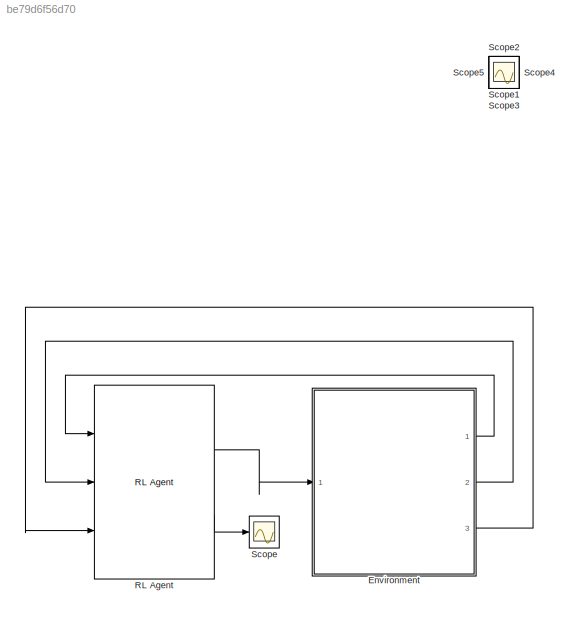
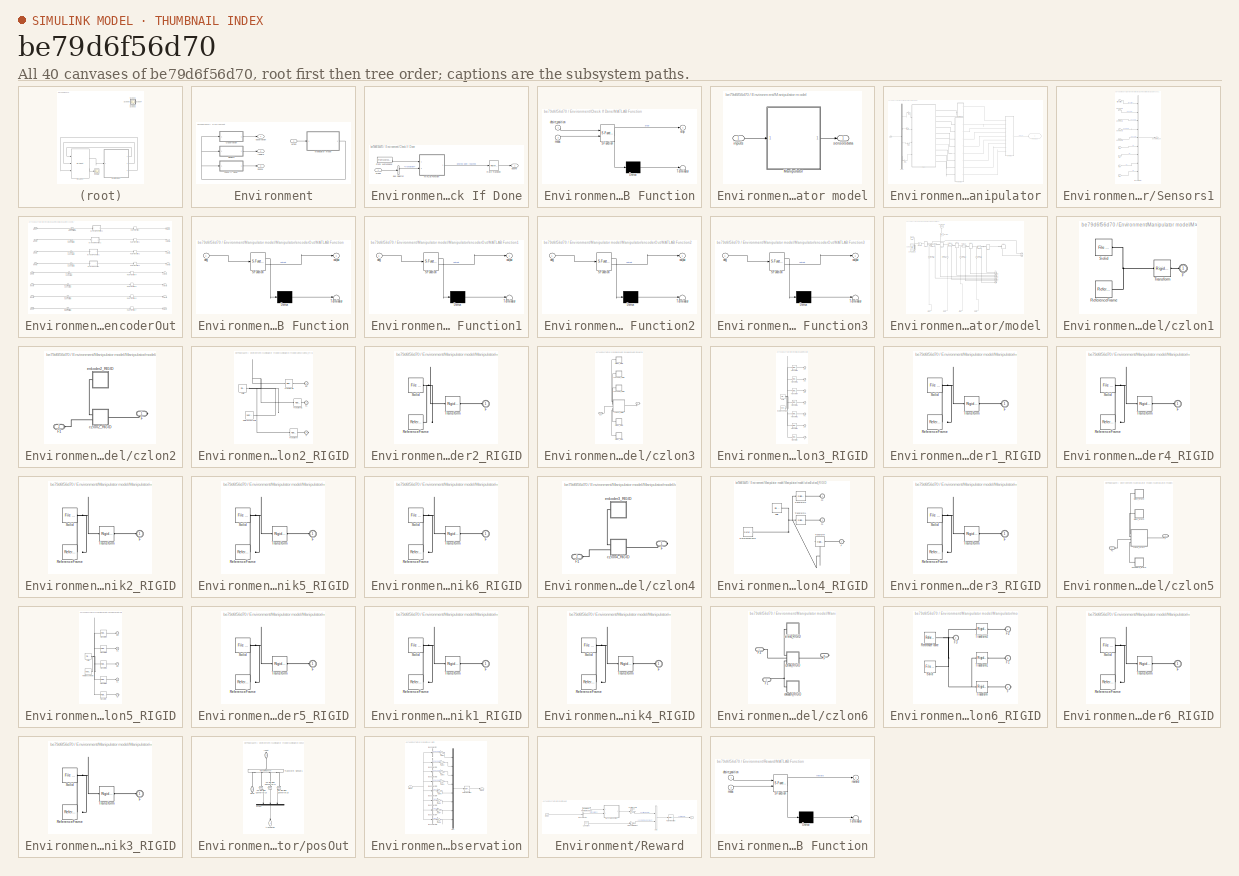
[diagram: thumbnail index - all 40 canvases of the model, root first then tree order]
MODEL slx_be79d6f56d70
KIND model
CONFIG AbsTol = 1e-4
CONFIG EnableMultiTasking = on
CONFIG FixedStep = auto
CONFIG MaxStep = auto
CONFIG MinStep = auto
CONFIG RelTol = 1e-3
CONFIG SampleTimeConstraint = Unconstrained
CONFIG SolverName = ode23t
CONFIG StartTime = 0.0
CONFIG StopTime = Tf
BLOCK [SubSystem] Environment
  Ports = [1, 3]
  RequestExecContextInheritance = off
BLOCK [SubSystem] Environment/Check If Done
  Ports = [1, 1]
  RequestExecContextInheritance = off
BLOCK [BusSelector] Environment/Check If Done/Bus Selector
  OutputSignals = translation
  Ports = [1, 1]
BLOCK [FromWorkspace] Environment/Check If Done/From Workspace
  VariableName = desire_position
BLOCK [SubSystem] Environment/Check If Done/MATLAB Function
  ErrorFcn = Stateflow.Translate.translate
  PermitHierarchicalResolution = ExplicitOnly
  Ports = [2, 1]
  RequestExecContextInheritance = off
  SFBlockType = MATLAB Function
  TreatAsAtomicUnit = on
BLOCK [Demux] Environment/Check If Done/MATLAB Function/ Demux 
  Outputs = 1
  Ports = [1, 1]
BLOCK [S-Function] Environment/Check If Done/MATLAB Function/ SFunction 
  EnableBusSupport = on
  FunctionName = sf_sfun
  PortCounts = [2 2]
  Ports = [2, 2]
  SFcnIsStateOwnerBlock = off
  SFunctionDeploymentMode = off
  Tag = Stateflow S-Function 7
BLOCK [Terminator] Environment/Check If Done/MATLAB Function/ Terminator 
BLOCK [Inport] Environment/Check If Done/MATLAB Function/desire_position
BLOCK [Inport] Environment/Check If Done/MATLAB Function/meas
  Port = 2
BLOCK [Outport] Environment/Check If Done/MATLAB Function/stop
BLOCK [RateTransition] Environment/Check If Done/Rate Transition
BLOCK [Outport] Environment/Check If Done/isdone
  VectorParamsAs1DForOutWhenUnconnected = off
BLOCK [Inport] Environment/Check If Done/meas
BLOCK [SubSystem] Environment/Manipulator model
  Ports = [1, 1]
  RequestExecContextInheritance = off
BLOCK [SubSystem] Environment/Manipulator model/Manipulator
  Ports = [1, 1]
  RequestExecContextInheritance = off
BLOCK [Demux] Environment/Manipulator model/Manipulator/Demux
  Ports = [1, 4]
BLOCK [Gain] Environment/Manipulator model/Manipulator/Gain
  Gain = max_t
BLOCK [Gain] Environment/Manipulator model/Manipulator/Gain1
  Gain = max_t
BLOCK [Gain] Environment/Manipulator model/Manipulator/Gain2
  Gain = max_t
BLOCK [Gain] Environment/Manipulator model/Manipulator/Gain3
  Gain = max_t
BLOCK [SubSystem] Environment/Manipulator model/Manipulator/Sensors1
  Ports = [9, 1]
  RequestExecContextInheritance = off
BLOCK [BusCreator] Environment/Manipulator model/Manipulator/Sensors1/Bus Creator
  DisplayOption = bar
  InheritFromInputs = on
  Inputs = 9
  Ports = [9, 1]
BLOCK [Inport] Environment/Manipulator model/Manipulator/Sensors1/enkoder1
  Port = 2
BLOCK [Inport] Environment/Manipulator model/Manipulator/Sensors1/enkoder2
  Port = 3
BLOCK [Inport] Environment/Manipulator model/Manipulator/Sensors1/enkoder3
  Port = 4
BLOCK [Inport] Environment/Manipulator model/Manipulator/Sensors1/enkoder4
  Port = 5
BLOCK [Outport] Environment/Manipulator model/Manipulator/Sensors1/sensors_out
  VectorParamsAs1DForOutWhenUnconnected = off
BLOCK [Inport] Environment/Manipulator model/Manipulator/Sensors1/translation
BLOCK [Inport] Environment/Manipulator model/Manipulator/Sensors1/w1
  Port = 6
BLOCK [Inport] Environment/Manipulator model/Manipulator/Sensors1/w2
  Port = 7
BLOCK [Inport] Environment/Manipulator model/Manipulator/Sensors1/w3
  NameLocation = right
  Port = 8
BLOCK [Inport] Environment/Manipulator model/Manipulator/Sensors1/w4
  Port = 9
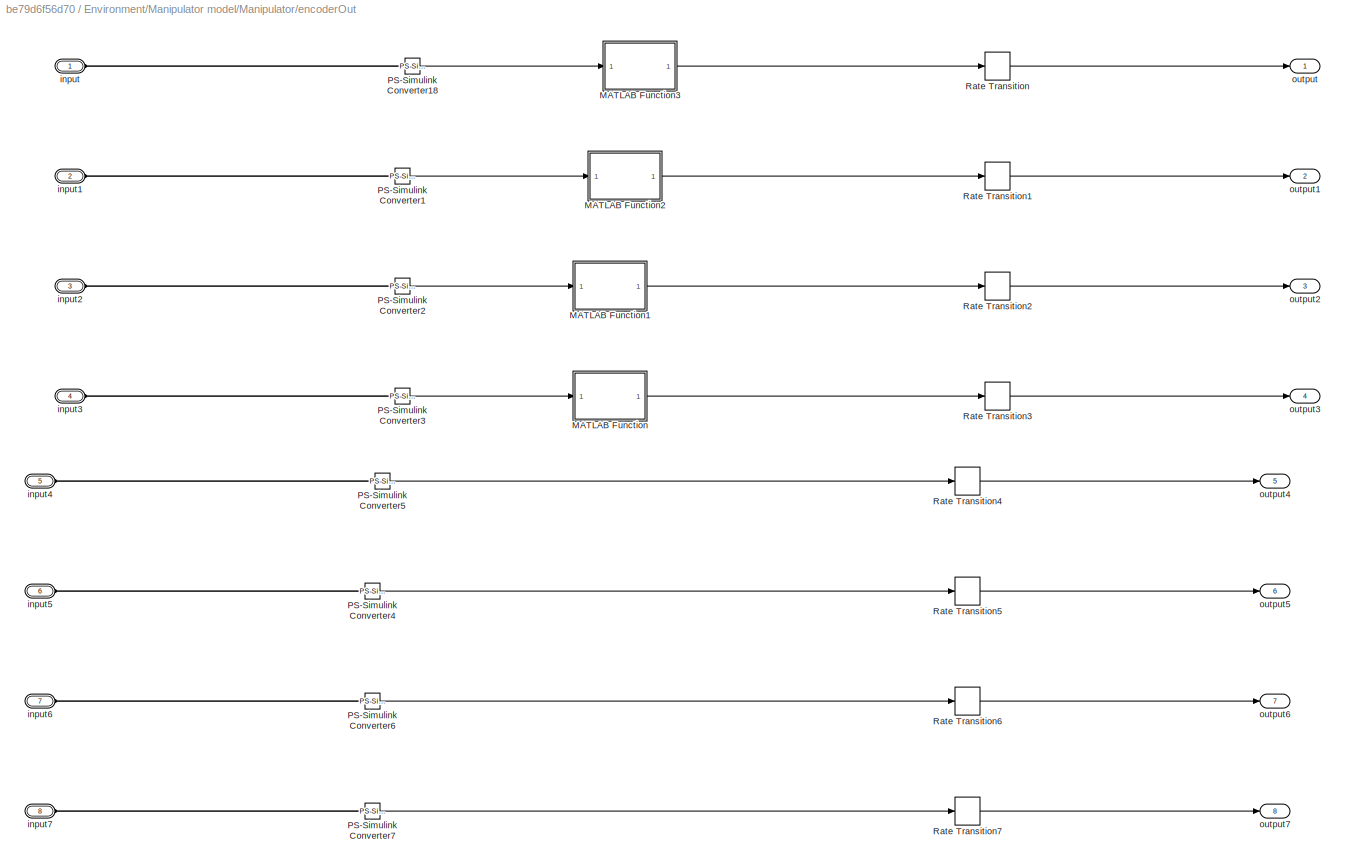
BLOCK [SubSystem] Environment/Manipulator model/Manipulator/encoderOut
  Ports = [0, 8, 0, 0, 0, 8]
  RequestExecContextInheritance = off
BLOCK [SubSystem] Environment/Manipulator model/Manipulator/encoderOut/MATLAB Function
  ErrorFcn = Stateflow.Translate.translate
  PermitHierarchicalResolution = ExplicitOnly
  Ports = [1, 1]
  RequestExecContextInheritance = off
  SFBlockType = MATLAB Function
  TreatAsAtomicUnit = on
BLOCK [Demux] Environment/Manipulator model/Manipulator/encoderOut/MATLAB Function/ Demux 
  Outputs = 1
  Ports = [1, 1]
BLOCK [S-Function] Environment/Manipulator model/Manipulator/encoderOut/MATLAB Function/ SFunction 
  EnableBusSupport = on
  FunctionName = sf_sfun
  PortCounts = [1 2]
  Ports = [1, 2]
  SFcnIsStateOwnerBlock = off
  SFunctionDeploymentMode = off
  Tag = Stateflow S-Function 3
BLOCK [Terminator] Environment/Manipulator model/Manipulator/encoderOut/MATLAB Function/ Terminator 
BLOCK [Inport] Environment/Manipulator model/Manipulator/encoderOut/MATLAB Function/deg
BLOCK [Outport] Environment/Manipulator model/Manipulator/encoderOut/MATLAB Function/output
BLOCK [SubSystem] Environment/Manipulator model/Manipulator/encoderOut/MATLAB Function1
  ErrorFcn = Stateflow.Translate.translate
  PermitHierarchicalResolution = ExplicitOnly
  Ports = [1, 1]
  RequestExecContextInheritance = off
  SFBlockType = MATLAB Function
  TreatAsAtomicUnit = on
BLOCK [Demux] Environment/Manipulator model/Manipulator/encoderOut/MATLAB Function1/ Demux 
  Outputs = 1
  Ports = [1, 1]
BLOCK [S-Function] Environment/Manipulator model/Manipulator/encoderOut/MATLAB Function1/ SFunction 
  EnableBusSupport = on
  FunctionName = sf_sfun
  PortCounts = [1 2]
  Ports = [1, 2]
  SFcnIsStateOwnerBlock = off
  SFunctionDeploymentMode = off
  Tag = Stateflow S-Function 4
BLOCK [Terminator] Environment/Manipulator model/Manipulator/encoderOut/MATLAB Function1/ Terminator 
BLOCK [Inport] Environment/Manipulator model/Manipulator/encoderOut/MATLAB Function1/deg
BLOCK [Outport] Environment/Manipulator model/Manipulator/encoderOut/MATLAB Function1/output
BLOCK [SubSystem] Environment/Manipulator model/Manipulator/encoderOut/MATLAB Function2
  ErrorFcn = Stateflow.Translate.translate
  PermitHierarchicalResolution = ExplicitOnly
  Ports = [1, 1]
  RequestExecContextInheritance = off
  SFBlockType = MATLAB Function
  TreatAsAtomicUnit = on
BLOCK [Demux] Environment/Manipulator model/Manipulator/encoderOut/MATLAB Function2/ Demux 
  Outputs = 1
  Ports = [1, 1]
BLOCK [S-Function] Environment/Manipulator model/Manipulator/encoderOut/MATLAB Function2/ SFunction 
  EnableBusSupport = on
  FunctionName = sf_sfun
  PortCounts = [1 2]
  Ports = [1, 2]
  SFcnIsStateOwnerBlock = off
  SFunctionDeploymentMode = off
  Tag = Stateflow S-Function 5
BLOCK [Terminator] Environment/Manipulator model/Manipulator/encoderOut/MATLAB Function2/ Terminator 
BLOCK [Inport] Environment/Manipulator model/Manipulator/encoderOut/MATLAB Function2/deg
BLOCK [Outport] Environment/Manipulator model/Manipulator/encoderOut/MATLAB Function2/output
BLOCK [SubSystem] Environment/Manipulator model/Manipulator/encoderOut/MATLAB Function3
  ErrorFcn = Stateflow.Translate.translate
  PermitHierarchicalResolution = ExplicitOnly
  Ports = [1, 1]
  RequestExecContextInheritance = off
  SFBlockType = MATLAB Function
  TreatAsAtomicUnit = on
BLOCK [Demux] Environment/Manipulator model/Manipulator/encoderOut/MATLAB Function3/ Demux 
  Outputs = 1
  Ports = [1, 1]
BLOCK [S-Function] Environment/Manipulator model/Manipulator/encoderOut/MATLAB Function3/ SFunction 
  EnableBusSupport = on
  FunctionName = sf_sfun
  PortCounts = [1 2]
  Ports = [1, 2]
  SFcnIsStateOwnerBlock = off
  SFunctionDeploymentMode = off
  Tag = Stateflow S-Function 6
BLOCK [Terminator] Environment/Manipulator model/Manipulator/encoderOut/MATLAB Function3/ Terminator 
BLOCK [Inport] Environment/Manipulator model/Manipulator/encoderOut/MATLAB Function3/deg
BLOCK [Outport] Environment/Manipulator model/Manipulator/encoderOut/MATLAB Function3/output
BLOCK [Reference] Environment/Manipulator model/Manipulator/encoderOut/PS-Simulink Converter1  REF=nesl_utility/PS-Simulink
Converter
  Ports = [0, 1, 0, 0, 0, 1]
  SourceBlock = nesl_utility/PS-Simulink\nConverter
  SourceProductBaseCode = PW,SS
  SourceType = PS-Simulink\nConverter
BLOCK [Reference] Environment/Manipulator model/Manipulator/encoderOut/PS-Simulink Converter18  REF=nesl_utility/PS-Simulink
Converter
  Ports = [0, 1, 0, 0, 0, 1]
  SourceBlock = nesl_utility/PS-Simulink\nConverter
  SourceProductBaseCode = PW,SS
  SourceType = PS-Simulink\nConverter
BLOCK [Reference] Environment/Manipulator model/Manipulator/encoderOut/PS-Simulink Converter2  REF=nesl_utility/PS-Simulink
Converter
  Ports = [0, 1, 0, 0, 0, 1]
  SourceBlock = nesl_utility/PS-Simulink\nConverter
  SourceProductBaseCode = PW,SS
  SourceType = PS-Simulink\nConverter
BLOCK [Reference] Environment/Manipulator model/Manipulator/encoderOut/PS-Simulink Converter3  REF=nesl_utility/PS-Simulink
Converter
  Ports = [0, 1, 0, 0, 0, 1]
  SourceBlock = nesl_utility/PS-Simulink\nConverter
  SourceProductBaseCode = PW,SS
  SourceType = PS-Simulink\nConverter
BLOCK [Reference] Environment/Manipulator model/Manipulator/encoderOut/PS-Simulink Converter4  REF=nesl_utility/PS-Simulink
Converter
  Ports = [0, 1, 0, 0, 0, 1]
  SourceBlock = nesl_utility/PS-Simulink\nConverter
  SourceProductBaseCode = PW,SS
  SourceType = PS-Simulink\nConverter
BLOCK [Reference] Environment/Manipulator model/Manipulator/encoderOut/PS-Simulink Converter5  REF=nesl_utility/PS-Simulink
Converter
  Ports = [0, 1, 0, 0, 0, 1]
  SourceBlock = nesl_utility/PS-Simulink\nConverter
  SourceProductBaseCode = PW,SS
  SourceType = PS-Simulink\nConverter
BLOCK [Reference] Environment/Manipulator model/Manipulator/encoderOut/PS-Simulink Converter6  REF=nesl_utility/PS-Simulink
Converter
  Ports = [0, 1, 0, 0, 0, 1]
  SourceBlock = nesl_utility/PS-Simulink\nConverter
  SourceProductBaseCode = PW,SS
  SourceType = PS-Simulink\nConverter
BLOCK [Reference] Environment/Manipulator model/Manipulator/encoderOut/PS-Simulink Converter7  REF=nesl_utility/PS-Simulink
Converter
  Ports = [0, 1, 0, 0, 0, 1]
  SourceBlock = nesl_utility/PS-Simulink\nConverter
  SourceProductBaseCode = PW,SS
  SourceType = PS-Simulink\nConverter
BLOCK [RateTransition] Environment/Manipulator model/Manipulator/encoderOut/Rate Transition
  Commented = through
  OutPortSampleTime = Ts
BLOCK [RateTransition] Environment/Manipulator model/Manipulator/encoderOut/Rate Transition1
  Commented = through
  OutPortSampleTime = Ts
BLOCK [RateTransition] Environment/Manipulator model/Manipulator/encoderOut/Rate Transition2
  Commented = through
  OutPortSampleTime = Ts
BLOCK [RateTransition] Environment/Manipulator model/Manipulator/encoderOut/Rate Transition3
  Commented = through
  OutPortSampleTime = Ts
BLOCK [RateTransition] Environment/Manipulator model/Manipulator/encoderOut/Rate Transition4
  Commented = through
  OutPortSampleTime = Ts
BLOCK [RateTransition] Environment/Manipulator model/Manipulator/encoderOut/Rate Transition5
  Commented = through
  OutPortSampleTime = Ts
BLOCK [RateTransition] Environment/Manipulator model/Manipulator/encoderOut/Rate Transition6
  Commented = through
  OutPortSampleTime = Ts
BLOCK [RateTransition] Environment/Manipulator model/Manipulator/encoderOut/Rate Transition7
  Commented = through
  OutPortSampleTime = Ts
BLOCK [PMIOPort] Environment/Manipulator model/Manipulator/encoderOut/input
  Side = Left
BLOCK [PMIOPort] Environment/Manipulator model/Manipulator/encoderOut/input1
  Port = 2
  Side = Left
BLOCK [PMIOPort] Environment/Manipulator model/Manipulator/encoderOut/input2
  Port = 3
  Side = Left
BLOCK [PMIOPort] Environment/Manipulator model/Manipulator/encoderOut/input3
  Port = 4
  Side = Left
BLOCK [PMIOPort] Environment/Manipulator model/Manipulator/encoderOut/input4
  Port = 5
  Side = Left
BLOCK [PMIOPort] Environment/Manipulator model/Manipulator/encoderOut/input5
  Port = 6
  Side = Left
BLOCK [PMIOPort] Environment/Manipulator model/Manipulator/encoderOut/input6
  Port = 7
  Side = Left
BLOCK [PMIOPort] Environment/Manipulator model/Manipulator/encoderOut/input7
  Port = 8
  Side = Left
BLOCK [Outport] Environment/Manipulator model/Manipulator/encoderOut/output
BLOCK [Outport] Environment/Manipulator model/Manipulator/encoderOut/output1
  Port = 2
BLOCK [Outport] Environment/Manipulator model/Manipulator/encoderOut/output2
  Port = 3
BLOCK [Outport] Environment/Manipulator model/Manipulator/encoderOut/output3
  Port = 4
BLOCK [Outport] Environment/Manipulator model/Manipulator/encoderOut/output4
  Port = 5
BLOCK [Outport] Environment/Manipulator model/Manipulator/encoderOut/output5
  Port = 6
BLOCK [Outport] Environment/Manipulator model/Manipulator/encoderOut/output6
  Port = 7
BLOCK [Outport] Environment/Manipulator model/Manipulator/encoderOut/output7
  Port = 8
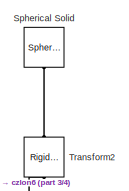
[diagram: Environment/Manipulator model/Manipulator/model - part 1/4, top left region]
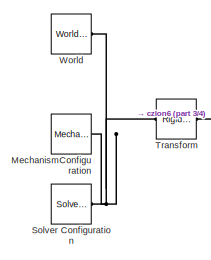
[diagram: Environment/Manipulator model/Manipulator/model - part 2/4, top left region]
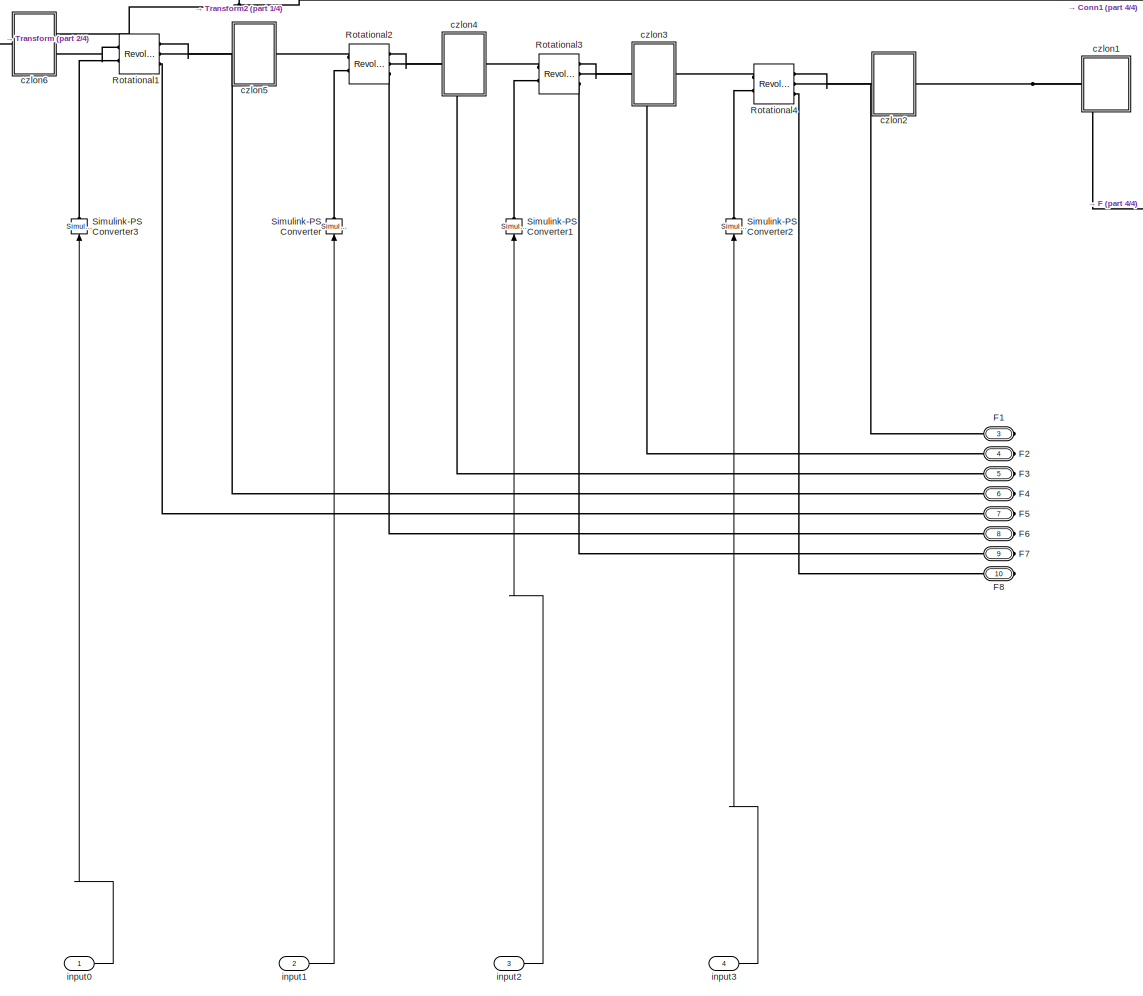
[diagram: Environment/Manipulator model/Manipulator/model - part 3/4, center side, full height]
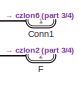
[diagram: Environment/Manipulator model/Manipulator/model - part 4/4, middle right region]
BLOCK [SubSystem] Environment/Manipulator model/Manipulator/model
  Ports = [4, 0, 0, 0, 0, 0, 10]
  RequestExecContextInheritance = off
BLOCK [PMIOPort] Environment/Manipulator model/Manipulator/model/Conn1
  Side = Right
BLOCK [PMIOPort] Environment/Manipulator model/Manipulator/model/F
  Port = 2
  Side = Right
BLOCK [PMIOPort] Environment/Manipulator model/Manipulator/model/F1
  Port = 3
  Side = Right
BLOCK [PMIOPort] Environment/Manipulator model/Manipulator/model/F2
  Port = 4
  Side = Right
BLOCK [PMIOPort] Environment/Manipulator model/Manipulator/model/F3
  Port = 5
  Side = Right
BLOCK [PMIOPort] Environment/Manipulator model/Manipulator/model/F4
  Port = 6
  Side = Right
BLOCK [PMIOPort] Environment/Manipulator model/Manipulator/model/F5
  Port = 7
  Side = Right
BLOCK [PMIOPort] Environment/Manipulator model/Manipulator/model/F6
  Port = 8
  Side = Right
BLOCK [PMIOPort] Environment/Manipulator model/Manipulator/model/F7
  Port = 9
  Side = Right
BLOCK [PMIOPort] Environment/Manipulator model/Manipulator/model/F8
  Port = 10
  Side = Right
BLOCK [Reference] Environment/Manipulator model/Manipulator/model/MechanismConfiguration  REF=sm_lib/Utilities/Mechanism
Configuration
  Ports = [0, 0, 0, 0, 0, 0, 1]
  SourceBlock = sm_lib/Utilities/Mechanism\nConfiguration
  SourceProductBaseCode = MS
  SourceType = Mechanism\nConfiguration
BLOCK [Reference] Environment/Manipulator model/Manipulator/model/Rotational1  REF=sm_lib/Joints/Revolute Joint
  Ports = [0, 0, 0, 0, 0, 2, 3]
  SourceBlock = sm_lib/Joints/Revolute Joint
  SourceProductBaseCode = MS
  SourceType = Revolute Joint
BLOCK [Reference] Environment/Manipulator model/Manipulator/model/Rotational2  REF=sm_lib/Joints/Revolute Joint
  Ports = [0, 0, 0, 0, 0, 2, 3]
  SourceBlock = sm_lib/Joints/Revolute Joint
  SourceProductBaseCode = MS
  SourceType = Revolute Joint
BLOCK [Reference] Environment/Manipulator model/Manipulator/model/Rotational3  REF=sm_lib/Joints/Revolute Joint
  Ports = [0, 0, 0, 0, 0, 2, 3]
  SourceBlock = sm_lib/Joints/Revolute Joint
  SourceProductBaseCode = MS
  SourceType = Revolute Joint
BLOCK [Reference] Environment/Manipulator model/Manipulator/model/Rotational4  REF=sm_lib/Joints/Revolute Joint
  Ports = [0, 0, 0, 0, 0, 2, 3]
  SourceBlock = sm_lib/Joints/Revolute Joint
  SourceProductBaseCode = MS
  SourceType = Revolute Joint
BLOCK [Reference] Environment/Manipulator model/Manipulator/model/Simulink-PS Converter  REF=nesl_utility/Simulink-PS
Converter
  NameLocation = right
  Ports = [1, 0, 0, 0, 0, 0, 1]
  SourceBlock = nesl_utility/Simulink-PS\nConverter
  SourceProductBaseCode = PW,SS
  SourceType = Simulink-PS\nConverter
BLOCK [Reference] Environment/Manipulator model/Manipulator/model/Simulink-PS Converter1  REF=nesl_utility/Simulink-PS
Converter
  NameLocation = right
  Ports = [1, 0, 0, 0, 0, 0, 1]
  SourceBlock = nesl_utility/Simulink-PS\nConverter
  SourceProductBaseCode = PW,SS
  SourceType = Simulink-PS\nConverter
BLOCK [Reference] Environment/Manipulator model/Manipulator/model/Simulink-PS Converter2  REF=nesl_utility/Simulink-PS
Converter
  NameLocation = right
  Ports = [1, 0, 0, 0, 0, 0, 1]
  SourceBlock = nesl_utility/Simulink-PS\nConverter
  SourceProductBaseCode = PW,SS
  SourceType = Simulink-PS\nConverter
BLOCK [Reference] Environment/Manipulator model/Manipulator/model/Simulink-PS Converter3  REF=nesl_utility/Simulink-PS
Converter
  NameLocation = right
  Ports = [1, 0, 0, 0, 0, 0, 1]
  SourceBlock = nesl_utility/Simulink-PS\nConverter
  SourceProductBaseCode = PW,SS
  SourceType = Simulink-PS\nConverter
BLOCK [Reference] Environment/Manipulator model/Manipulator/model/Solver Configuration  REF=nesl_utility/Solver
Configuration
  Ports = [0, 0, 0, 0, 0, 0, 1]
  SourceBlock = nesl_utility/Solver\nConfiguration
  SourceProductBaseCode = PW,SS
  SourceType = Solver\nConfiguration
BLOCK [Reference] Environment/Manipulator model/Manipulator/model/Spherical Solid  REF=sm_lib/Body Elements/Spherical Solid
  NameLocation = left
  Ports = [0, 0, 0, 0, 0, 0, 1]
  SourceBlock = sm_lib/Body Elements/Spherical Solid
  SourceProductBaseCode = MS
  SourceType = Spherical Solid
BLOCK [Reference] Environment/Manipulator model/Manipulator/model/Transform  REF=sm_lib/Frames and
Transforms/Rigid
Transform
  Ports = [0, 0, 0, 0, 0, 1, 1]
  SourceBlock = sm_lib/Frames and\nTransforms/Rigid\nTransform
  SourceProductBaseCode = MS
  SourceType = Rigid\nTransform
BLOCK [Reference] Environment/Manipulator model/Manipulator/model/Transform2  REF=sm_lib/Frames and
Transforms/Rigid
Transform
  NameLocation = right
  Ports = [0, 0, 0, 0, 0, 1, 1]
  SourceBlock = sm_lib/Frames and\nTransforms/Rigid\nTransform
  SourceProductBaseCode = MS
  SourceType = Rigid\nTransform
BLOCK [Reference] Environment/Manipulator model/Manipulator/model/World  REF=sm_lib/Frames and
Transforms/World Frame
  Ports = [0, 0, 0, 0, 0, 0, 1]
  SourceBlock = sm_lib/Frames and\nTransforms/World Frame
  SourceProductBaseCode = MS
  SourceType = World Frame
BLOCK [SubSystem] Environment/Manipulator model/Manipulator/model/czlon1
  Ports = [0, 0, 0, 0, 0, 1]
  RequestExecContextInheritance = off
BLOCK [PMIOPort] Environment/Manipulator model/Manipulator/model/czlon1/F
  Side = Left
BLOCK [Reference] Environment/Manipulator model/Manipulator/model/czlon1/ReferenceFrame  REF=sm_lib/Frames and
Transforms/Reference
Frame
  Ports = [0, 0, 0, 0, 0, 0, 1]
  SourceBlock = sm_lib/Frames and\nTransforms/Reference\nFrame
  SourceProductBaseCode = MS
  SourceType = Reference\nFrame
BLOCK [Reference] Environment/Manipulator model/Manipulator/model/czlon1/Solid  REF=sm_lib/Body Elements/File Solid
  Ports = [0, 0, 0, 0, 0, 0, 1]
  SourceBlock = sm_lib/Body Elements/File Solid
  SourceProductBaseCode = MS
  SourceType = File Solid
BLOCK [Reference] Environment/Manipulator model/Manipulator/model/czlon1/Transform  REF=sm_lib/Frames and
Transforms/Rigid
Transform
  Ports = [0, 0, 0, 0, 0, 1, 1]
  SourceBlock = sm_lib/Frames and\nTransforms/Rigid\nTransform
  SourceProductBaseCode = MS
  SourceType = Rigid\nTransform
BLOCK [SubSystem] Environment/Manipulator model/Manipulator/model/czlon2
  Ports = [0, 0, 0, 0, 0, 1, 1]
  RequestExecContextInheritance = off
BLOCK [PMIOPort] Environment/Manipulator model/Manipulator/model/czlon2/F
  Side = Right
BLOCK [PMIOPort] Environment/Manipulator model/Manipulator/model/czlon2/F1
  Port = 2
  Side = Left
BLOCK [SubSystem] Environment/Manipulator model/Manipulator/model/czlon2/czlon2_RIGID
  Ports = [0, 0, 0, 0, 0, 2, 1]
  RequestExecContextInheritance = off
BLOCK [PMIOPort] Environment/Manipulator model/Manipulator/model/czlon2/czlon2_RIGID/F
  Port = 3
  Side = Right
BLOCK [PMIOPort] Environment/Manipulator model/Manipulator/model/czlon2/czlon2_RIGID/F1
  Port = 2
  Side = Left
BLOCK [PMIOPort] Environment/Manipulator model/Manipulator/model/czlon2/czlon2_RIGID/F2
  Side = Left
BLOCK [Reference] Environment/Manipulator model/Manipulator/model/czlon2/czlon2_RIGID/ReferenceFrame  REF=sm_lib/Frames and
Transforms/Reference
Frame
  Ports = [0, 0, 0, 0, 0, 0, 1]
  SourceBlock = sm_lib/Frames and\nTransforms/Reference\nFrame
  SourceProductBaseCode = MS
  SourceType = Reference\nFrame
BLOCK [Reference] Environment/Manipulator model/Manipulator/model/czlon2/czlon2_RIGID/Solid  REF=sm_lib/Body Elements/File Solid
  Ports = [0, 0, 0, 0, 0, 0, 1]
  SourceBlock = sm_lib/Body Elements/File Solid
  SourceProductBaseCode = MS
  SourceType = File Solid
BLOCK [Reference] Environment/Manipulator model/Manipulator/model/czlon2/czlon2_RIGID/Transform  REF=sm_lib/Frames and
Transforms/Rigid
Transform
  Ports = [0, 0, 0, 0, 0, 1, 1]
  SourceBlock = sm_lib/Frames and\nTransforms/Rigid\nTransform
  SourceProductBaseCode = MS
  SourceType = Rigid\nTransform
BLOCK [Reference] Environment/Manipulator model/Manipulator/model/czlon2/czlon2_RIGID/Transform1  REF=sm_lib/Frames and
Transforms/Rigid
Transform
  Ports = [0, 0, 0, 0, 0, 1, 1]
  SourceBlock = sm_lib/Frames and\nTransforms/Rigid\nTransform
  SourceProductBaseCode = MS
  SourceType = Rigid\nTransform
BLOCK [Reference] Environment/Manipulator model/Manipulator/model/czlon2/czlon2_RIGID/Transform2  REF=sm_lib/Frames and
Transforms/Rigid
Transform
  Ports = [0, 0, 0, 0, 0, 1, 1]
  SourceBlock = sm_lib/Frames and\nTransforms/Rigid\nTransform
  SourceProductBaseCode = MS
  SourceType = Rigid\nTransform
BLOCK [SubSystem] Environment/Manipulator model/Manipulator/model/czlon2/enkoder2_RIGID
  Ports = [0, 0, 0, 0, 0, 1]
  RequestExecContextInheritance = off
BLOCK [PMIOPort] Environment/Manipulator model/Manipulator/model/czlon2/enkoder2_RIGID/F
  Side = Left
BLOCK [Reference] Environment/Manipulator model/Manipulator/model/czlon2/enkoder2_RIGID/ReferenceFrame  REF=sm_lib/Frames and
Transforms/Reference
Frame
  Ports = [0, 0, 0, 0, 0, 0, 1]
  SourceBlock = sm_lib/Frames and\nTransforms/Reference\nFrame
  SourceProductBaseCode = MS
  SourceType = Reference\nFrame
BLOCK [Reference] Environment/Manipulator model/Manipulator/model/czlon2/enkoder2_RIGID/Solid  REF=sm_lib/Body Elements/File Solid
  Ports = [0, 0, 0, 0, 0, 0, 1]
  SourceBlock = sm_lib/Body Elements/File Solid
  SourceProductBaseCode = MS
  SourceType = File Solid
BLOCK [Reference] Environment/Manipulator model/Manipulator/model/czlon2/enkoder2_RIGID/Transform  REF=sm_lib/Frames and
Transforms/Rigid
Transform
  Ports = [0, 0, 0, 0, 0, 1, 1]
  SourceBlock = sm_lib/Frames and\nTransforms/Rigid\nTransform
  SourceProductBaseCode = MS
  SourceType = Rigid\nTransform
BLOCK [SubSystem] Environment/Manipulator model/Manipulator/model/czlon3
  Ports = [0, 0, 0, 0, 0, 1, 1]
  RequestExecContextInheritance = off
BLOCK [PMIOPort] Environment/Manipulator model/Manipulator/model/czlon3/F
  Side = Right
BLOCK [PMIOPort] Environment/Manipulator model/Manipulator/model/czlon3/F1
  Port = 2
  Side = Left
BLOCK [SubSystem] Environment/Manipulator model/Manipulator/model/czlon3/czlon3_RIGID
  Ports = [0, 0, 0, 0, 0, 6, 1]
  RequestExecContextInheritance = off
BLOCK [PMIOPort] Environment/Manipulator model/Manipulator/model/czlon3/czlon3_RIGID/F
  Port = 7
  Side = Right
BLOCK [PMIOPort] Environment/Manipulator model/Manipulator/model/czlon3/czlon3_RIGID/F1
  Port = 4
  Side = Left
BLOCK [PMIOPort] Environment/Manipulator model/Manipulator/model/czlon3/czlon3_RIGID/F2
  Port = 3
  Side = Left
BLOCK [PMIOPort] Environment/Manipulator model/Manipulator/model/czlon3/czlon3_RIGID/F3
  Port = 2
  Side = Left
BLOCK [PMIOPort] Environment/Manipulator model/Manipulator/model/czlon3/czlon3_RIGID/F4
  Port = 6
  Side = Left
BLOCK [PMIOPort] Environment/Manipulator model/Manipulator/model/czlon3/czlon3_RIGID/F5
  Port = 5
  Side = Left
BLOCK [PMIOPort] Environment/Manipulator model/Manipulator/model/czlon3/czlon3_RIGID/F6
  Side = Left
BLOCK [Reference] Environment/Manipulator model/Manipulator/model/czlon3/czlon3_RIGID/ReferenceFrame  REF=sm_lib/Frames and
Transforms/Reference
Frame
  Ports = [0, 0, 0, 0, 0, 0, 1]
  SourceBlock = sm_lib/Frames and\nTransforms/Reference\nFrame
  SourceProductBaseCode = MS
  SourceType = Reference\nFrame
BLOCK [Reference] Environment/Manipulator model/Manipulator/model/czlon3/czlon3_RIGID/Solid  REF=sm_lib/Body Elements/File Solid
  Ports = [0, 0, 0, 0, 0, 0, 1]
  SourceBlock = sm_lib/Body Elements/File Solid
  SourceProductBaseCode = MS
  SourceType = File Solid
BLOCK [Reference] Environment/Manipulator model/Manipulator/model/czlon3/czlon3_RIGID/Transform  REF=sm_lib/Frames and
Transforms/Rigid
Transform
  Ports = [0, 0, 0, 0, 0, 1, 1]
  SourceBlock = sm_lib/Frames and\nTransforms/Rigid\nTransform
  SourceProductBaseCode = MS
  SourceType = Rigid\nTransform
BLOCK [Reference] Environment/Manipulator model/Manipulator/model/czlon3/czlon3_RIGID/Transform1  REF=sm_lib/Frames and
Transforms/Rigid
Transform
  Ports = [0, 0, 0, 0, 0, 1, 1]
  SourceBlock = sm_lib/Frames and\nTransforms/Rigid\nTransform
  SourceProductBaseCode = MS
  SourceType = Rigid\nTransform
BLOCK [Reference] Environment/Manipulator model/Manipulator/model/czlon3/czlon3_RIGID/Transform2  REF=sm_lib/Frames and
Transforms/Rigid
Transform
  Ports = [0, 0, 0, 0, 0, 1, 1]
  SourceBlock = sm_lib/Frames and\nTransforms/Rigid\nTransform
  SourceProductBaseCode = MS
  SourceType = Rigid\nTransform
BLOCK [Reference] Environment/Manipulator model/Manipulator/model/czlon3/czlon3_RIGID/Transform3  REF=sm_lib/Frames and
Transforms/Rigid
Transform
  Ports = [0, 0, 0, 0, 0, 1, 1]
  SourceBlock = sm_lib/Frames and\nTransforms/Rigid\nTransform
  SourceProductBaseCode = MS
  SourceType = Rigid\nTransform
BLOCK [Reference] Environment/Manipulator model/Manipulator/model/czlon3/czlon3_RIGID/Transform4  REF=sm_lib/Frames and
Transforms/Rigid
Transform
  Ports = [0, 0, 0, 0, 0, 1, 1]
  SourceBlock = sm_lib/Frames and\nTransforms/Rigid\nTransform
  SourceProductBaseCode = MS
  SourceType = Rigid\nTransform
BLOCK [Reference] Environment/Manipulator model/Manipulator/model/czlon3/czlon3_RIGID/Transform5  REF=sm_lib/Frames and
Transforms/Rigid
Transform
  Ports = [0, 0, 0, 0, 0, 1, 1]
  SourceBlock = sm_lib/Frames and\nTransforms/Rigid\nTransform
  SourceProductBaseCode = MS
  SourceType = Rigid\nTransform
BLOCK [Reference] Environment/Manipulator model/Manipulator/model/czlon3/czlon3_RIGID/Transform6  REF=sm_lib/Frames and
Transforms/Rigid
Transform
  Ports = [0, 0, 0, 0, 0, 1, 1]
  SourceBlock = sm_lib/Frames and\nTransforms/Rigid\nTransform
  SourceProductBaseCode = MS
  SourceType = Rigid\nTransform
BLOCK [SubSystem] Environment/Manipulator model/Manipulator/model/czlon3/enkoder1_RIGID
  Ports = [0, 0, 0, 0, 0, 1]
  RequestExecContextInheritance = off
BLOCK [PMIOPort] Environment/Manipulator model/Manipulator/model/czlon3/enkoder1_RIGID/F
  Side = Left
BLOCK [Reference] Environment/Manipulator model/Manipulator/model/czlon3/enkoder1_RIGID/ReferenceFrame  REF=sm_lib/Frames and
Transforms/Reference
Frame
  Ports = [0, 0, 0, 0, 0, 0, 1]
  SourceBlock = sm_lib/Frames and\nTransforms/Reference\nFrame
  SourceProductBaseCode = MS
  SourceType = Reference\nFrame
BLOCK [Reference] Environment/Manipulator model/Manipulator/model/czlon3/enkoder1_RIGID/Solid  REF=sm_lib/Body Elements/File Solid
  Ports = [0, 0, 0, 0, 0, 0, 1]
  SourceBlock = sm_lib/Body Elements/File Solid
  SourceProductBaseCode = MS
  SourceType = File Solid
BLOCK [Reference] Environment/Manipulator model/Manipulator/model/czlon3/enkoder1_RIGID/Transform  REF=sm_lib/Frames and
Transforms/Rigid
Transform
  Ports = [0, 0, 0, 0, 0, 1, 1]
  SourceBlock = sm_lib/Frames and\nTransforms/Rigid\nTransform
  SourceProductBaseCode = MS
  SourceType = Rigid\nTransform
BLOCK [SubSystem] Environment/Manipulator model/Manipulator/model/czlon3/enkoder4_RIGID
  Ports = [0, 0, 0, 0, 0, 1]
  RequestExecContextInheritance = off
BLOCK [PMIOPort] Environment/Manipulator model/Manipulator/model/czlon3/enkoder4_RIGID/F
  Side = Left
BLOCK [Reference] Environment/Manipulator model/Manipulator/model/czlon3/enkoder4_RIGID/ReferenceFrame  REF=sm_lib/Frames and
Transforms/Reference
Frame
  Ports = [0, 0, 0, 0, 0, 0, 1]
  SourceBlock = sm_lib/Frames and\nTransforms/Reference\nFrame
  SourceProductBaseCode = MS
  SourceType = Reference\nFrame
BLOCK [Reference] Environment/Manipulator model/Manipulator/model/czlon3/enkoder4_RIGID/Solid  REF=sm_lib/Body Elements/File Solid
  Ports = [0, 0, 0, 0, 0, 0, 1]
  SourceBlock = sm_lib/Body Elements/File Solid
  SourceProductBaseCode = MS
  SourceType = File Solid
BLOCK [Reference] Environment/Manipulator model/Manipulator/model/czlon3/enkoder4_RIGID/Transform  REF=sm_lib/Frames and
Transforms/Rigid
Transform
  Ports = [0, 0, 0, 0, 0, 1, 1]
  SourceBlock = sm_lib/Frames and\nTransforms/Rigid\nTransform
  SourceProductBaseCode = MS
  SourceType = Rigid\nTransform
BLOCK [SubSystem] Environment/Manipulator model/Manipulator/model/czlon3/silnik2_RIGID
  Ports = [0, 0, 0, 0, 0, 1]
  RequestExecContextInheritance = off
BLOCK [PMIOPort] Environment/Manipulator model/Manipulator/model/czlon3/silnik2_RIGID/F
  Side = Left
BLOCK [Reference] Environment/Manipulator model/Manipulator/model/czlon3/silnik2_RIGID/ReferenceFrame  REF=sm_lib/Frames and
Transforms/Reference
Frame
  Ports = [0, 0, 0, 0, 0, 0, 1]
  SourceBlock = sm_lib/Frames and\nTransforms/Reference\nFrame
  SourceProductBaseCode = MS
  SourceType = Reference\nFrame
BLOCK [Reference] Environment/Manipulator model/Manipulator/model/czlon3/silnik2_RIGID/Solid  REF=sm_lib/Body Elements/File Solid
  Ports = [0, 0, 0, 0, 0, 0, 1]
  SourceBlock = sm_lib/Body Elements/File Solid
  SourceProductBaseCode = MS
  SourceType = File Solid
BLOCK [Reference] Environment/Manipulator model/Manipulator/model/czlon3/silnik2_RIGID/Transform  REF=sm_lib/Frames and
Transforms/Rigid
Transform
  Ports = [0, 0, 0, 0, 0, 1, 1]
  SourceBlock = sm_lib/Frames and\nTransforms/Rigid\nTransform
  SourceProductBaseCode = MS
  SourceType = Rigid\nTransform
BLOCK [SubSystem] Environment/Manipulator model/Manipulator/model/czlon3/silnik5_RIGID
  Ports = [0, 0, 0, 0, 0, 1]
  RequestExecContextInheritance = off
BLOCK [PMIOPort] Environment/Manipulator model/Manipulator/model/czlon3/silnik5_RIGID/F
  Side = Left
BLOCK [Reference] Environment/Manipulator model/Manipulator/model/czlon3/silnik5_RIGID/ReferenceFrame  REF=sm_lib/Frames and
Transforms/Reference
Frame
  Ports = [0, 0, 0, 0, 0, 0, 1]
  SourceBlock = sm_lib/Frames and\nTransforms/Reference\nFrame
  SourceProductBaseCode = MS
  SourceType = Reference\nFrame
BLOCK [Reference] Environment/Manipulator model/Manipulator/model/czlon3/silnik5_RIGID/Solid  REF=sm_lib/Body Elements/File Solid
  Ports = [0, 0, 0, 0, 0, 0, 1]
  SourceBlock = sm_lib/Body Elements/File Solid
  SourceProductBaseCode = MS
  SourceType = File Solid
BLOCK [Reference] Environment/Manipulator model/Manipulator/model/czlon3/silnik5_RIGID/Transform  REF=sm_lib/Frames and
Transforms/Rigid
Transform
  Ports = [0, 0, 0, 0, 0, 1, 1]
  SourceBlock = sm_lib/Frames and\nTransforms/Rigid\nTransform
  SourceProductBaseCode = MS
  SourceType = Rigid\nTransform
BLOCK [SubSystem] Environment/Manipulator model/Manipulator/model/czlon3/silnik6_RIGID
  Ports = [0, 0, 0, 0, 0, 1]
  RequestExecContextInheritance = off
BLOCK [PMIOPort] Environment/Manipulator model/Manipulator/model/czlon3/silnik6_RIGID/F
  Side = Left
BLOCK [Reference] Environment/Manipulator model/Manipulator/model/czlon3/silnik6_RIGID/ReferenceFrame  REF=sm_lib/Frames and
Transforms/Reference
Frame
  Ports = [0, 0, 0, 0, 0, 0, 1]
  SourceBlock = sm_lib/Frames and\nTransforms/Reference\nFrame
  SourceProductBaseCode = MS
  SourceType = Reference\nFrame
BLOCK [Reference] Environment/Manipulator model/Manipulator/model/czlon3/silnik6_RIGID/Solid  REF=sm_lib/Body Elements/File Solid
  Ports = [0, 0, 0, 0, 0, 0, 1]
  SourceBlock = sm_lib/Body Elements/File Solid
  SourceProductBaseCode = MS
  SourceType = File Solid
BLOCK [Reference] Environment/Manipulator model/Manipulator/model/czlon3/silnik6_RIGID/Transform  REF=sm_lib/Frames and
Transforms/Rigid
Transform
  Ports = [0, 0, 0, 0, 0, 1, 1]
  SourceBlock = sm_lib/Frames and\nTransforms/Rigid\nTransform
  SourceProductBaseCode = MS
  SourceType = Rigid\nTransform
BLOCK [SubSystem] Environment/Manipulator model/Manipulator/model/czlon4
  Ports = [0, 0, 0, 0, 0, 1, 1]
  RequestExecContextInheritance = off
BLOCK [PMIOPort] Environment/Manipulator model/Manipulator/model/czlon4/F
  Side = Right
BLOCK [PMIOPort] Environment/Manipulator model/Manipulator/model/czlon4/F1
  Port = 2
  Side = Left
BLOCK [SubSystem] Environment/Manipulator model/Manipulator/model/czlon4/czlon4_RIGID
  Ports = [0, 0, 0, 0, 0, 2, 1]
  RequestExecContextInheritance = off
BLOCK [PMIOPort] Environment/Manipulator model/Manipulator/model/czlon4/czlon4_RIGID/F
  Port = 3
  Side = Right
BLOCK [PMIOPort] Environment/Manipulator model/Manipulator/model/czlon4/czlon4_RIGID/F1
  Port = 2
  Side = Left
BLOCK [PMIOPort] Environment/Manipulator model/Manipulator/model/czlon4/czlon4_RIGID/F2
  Side = Left
BLOCK [Reference] Environment/Manipulator model/Manipulator/model/czlon4/czlon4_RIGID/ReferenceFrame  REF=sm_lib/Frames and
Transforms/Reference
Frame
  Ports = [0, 0, 0, 0, 0, 0, 1]
  SourceBlock = sm_lib/Frames and\nTransforms/Reference\nFrame
  SourceProductBaseCode = MS
  SourceType = Reference\nFrame
BLOCK [Reference] Environment/Manipulator model/Manipulator/model/czlon4/czlon4_RIGID/Solid  REF=sm_lib/Body Elements/File Solid
  Ports = [0, 0, 0, 0, 0, 0, 1]
  SourceBlock = sm_lib/Body Elements/File Solid
  SourceProductBaseCode = MS
  SourceType = File Solid
BLOCK [Reference] Environment/Manipulator model/Manipulator/model/czlon4/czlon4_RIGID/Transform  REF=sm_lib/Frames and
Transforms/Rigid
Transform
  Ports = [0, 0, 0, 0, 0, 1, 1]
  SourceBlock = sm_lib/Frames and\nTransforms/Rigid\nTransform
  SourceProductBaseCode = MS
  SourceType = Rigid\nTransform
BLOCK [Reference] Environment/Manipulator model/Manipulator/model/czlon4/czlon4_RIGID/Transform1  REF=sm_lib/Frames and
Transforms/Rigid
Transform
  Ports = [0, 0, 0, 0, 0, 1, 1]
  SourceBlock = sm_lib/Frames and\nTransforms/Rigid\nTransform
  SourceProductBaseCode = MS
  SourceType = Rigid\nTransform
BLOCK [Reference] Environment/Manipulator model/Manipulator/model/czlon4/czlon4_RIGID/Transform2  REF=sm_lib/Frames and
Transforms/Rigid
Transform
  Ports = [0, 0, 0, 0, 0, 1, 1]
  SourceBlock = sm_lib/Frames and\nTransforms/Rigid\nTransform
  SourceProductBaseCode = MS
  SourceType = Rigid\nTransform
BLOCK [SubSystem] Environment/Manipulator model/Manipulator/model/czlon4/enkoder3_RIGID
  Ports = [0, 0, 0, 0, 0, 1]
  RequestExecContextInheritance = off
BLOCK [PMIOPort] Environment/Manipulator model/Manipulator/model/czlon4/enkoder3_RIGID/F
  Side = Left
BLOCK [Reference] Environment/Manipulator model/Manipulator/model/czlon4/enkoder3_RIGID/ReferenceFrame  REF=sm_lib/Frames and
Transforms/Reference
Frame
  Ports = [0, 0, 0, 0, 0, 0, 1]
  SourceBlock = sm_lib/Frames and\nTransforms/Reference\nFrame
  SourceProductBaseCode = MS
  SourceType = Reference\nFrame
BLOCK [Reference] Environment/Manipulator model/Manipulator/model/czlon4/enkoder3_RIGID/Solid  REF=sm_lib/Body Elements/File Solid
  Ports = [0, 0, 0, 0, 0, 0, 1]
  SourceBlock = sm_lib/Body Elements/File Solid
  SourceProductBaseCode = MS
  SourceType = File Solid
BLOCK [Reference] Environment/Manipulator model/Manipulator/model/czlon4/enkoder3_RIGID/Transform  REF=sm_lib/Frames and
Transforms/Rigid
Transform
  Ports = [0, 0, 0, 0, 0, 1, 1]
  SourceBlock = sm_lib/Frames and\nTransforms/Rigid\nTransform
  SourceProductBaseCode = MS
  SourceType = Rigid\nTransform
BLOCK [SubSystem] Environment/Manipulator model/Manipulator/model/czlon5
  Ports = [0, 0, 0, 0, 0, 1, 1]
  RequestExecContextInheritance = off
BLOCK [PMIOPort] Environment/Manipulator model/Manipulator/model/czlon5/F
  Side = Right
BLOCK [PMIOPort] Environment/Manipulator model/Manipulator/model/czlon5/F1
  Port = 2
  Side = Left
BLOCK [SubSystem] Environment/Manipulator model/Manipulator/model/czlon5/czlon5_RIGID
  Ports = [0, 0, 0, 0, 0, 4, 1]
  RequestExecContextInheritance = off
BLOCK [PMIOPort] Environment/Manipulator model/Manipulator/model/czlon5/czlon5_RIGID/F
  Port = 5
  Side = Right
BLOCK [PMIOPort] Environment/Manipulator model/Manipulator/model/czlon5/czlon5_RIGID/F1
  Port = 3
  Side = Left
BLOCK [PMIOPort] Environment/Manipulator model/Manipulator/model/czlon5/czlon5_RIGID/F2
  Port = 4
  Side = Left
BLOCK [PMIOPort] Environment/Manipulator model/Manipulator/model/czlon5/czlon5_RIGID/F3
  Port = 2
  Side = Left
BLOCK [PMIOPort] Environment/Manipulator model/Manipulator/model/czlon5/czlon5_RIGID/F4
  Side = Left
BLOCK [Reference] Environment/Manipulator model/Manipulator/model/czlon5/czlon5_RIGID/ReferenceFrame  REF=sm_lib/Frames and
Transforms/Reference
Frame
  Ports = [0, 0, 0, 0, 0, 0, 1]
  SourceBlock = sm_lib/Frames and\nTransforms/Reference\nFrame
  SourceProductBaseCode = MS
  SourceType = Reference\nFrame
BLOCK [Reference] Environment/Manipulator model/Manipulator/model/czlon5/czlon5_RIGID/Solid  REF=sm_lib/Body Elements/File Solid
  Ports = [0, 0, 0, 0, 0, 0, 1]
  SourceBlock = sm_lib/Body Elements/File Solid
  SourceProductBaseCode = MS
  SourceType = File Solid
BLOCK [Reference] Environment/Manipulator model/Manipulator/model/czlon5/czlon5_RIGID/Transform  REF=sm_lib/Frames and
Transforms/Rigid
Transform
  Ports = [0, 0, 0, 0, 0, 1, 1]
  SourceBlock = sm_lib/Frames and\nTransforms/Rigid\nTransform
  SourceProductBaseCode = MS
  SourceType = Rigid\nTransform
BLOCK [Reference] Environment/Manipulator model/Manipulator/model/czlon5/czlon5_RIGID/Transform1  REF=sm_lib/Frames and
Transforms/Rigid
Transform
  Ports = [0, 0, 0, 0, 0, 1, 1]
  SourceBlock = sm_lib/Frames and\nTransforms/Rigid\nTransform
  SourceProductBaseCode = MS
  SourceType = Rigid\nTransform
BLOCK [Reference] Environment/Manipulator model/Manipulator/model/czlon5/czlon5_RIGID/Transform2  REF=sm_lib/Frames and
Transforms/Rigid
Transform
  Ports = [0, 0, 0, 0, 0, 1, 1]
  SourceBlock = sm_lib/Frames and\nTransforms/Rigid\nTransform
  SourceProductBaseCode = MS
  SourceType = Rigid\nTransform
BLOCK [Reference] Environment/Manipulator model/Manipulator/model/czlon5/czlon5_RIGID/Transform3  REF=sm_lib/Frames and
Transforms/Rigid
Transform
  Ports = [0, 0, 0, 0, 0, 1, 1]
  SourceBlock = sm_lib/Frames and\nTransforms/Rigid\nTransform
  SourceProductBaseCode = MS
  SourceType = Rigid\nTransform
BLOCK [Reference] Environment/Manipulator model/Manipulator/model/czlon5/czlon5_RIGID/Transform4  REF=sm_lib/Frames and
Transforms/Rigid
Transform
  Ports = [0, 0, 0, 0, 0, 1, 1]
  SourceBlock = sm_lib/Frames and\nTransforms/Rigid\nTransform
  SourceProductBaseCode = MS
  SourceType = Rigid\nTransform
BLOCK [SubSystem] Environment/Manipulator model/Manipulator/model/czlon5/enkoder5_RIGID
  Ports = [0, 0, 0, 0, 0, 1]
  RequestExecContextInheritance = off
BLOCK [PMIOPort] Environment/Manipulator model/Manipulator/model/czlon5/enkoder5_RIGID/F
  Side = Left
BLOCK [Reference] Environment/Manipulator model/Manipulator/model/czlon5/enkoder5_RIGID/ReferenceFrame  REF=sm_lib/Frames and
Transforms/Reference
Frame
  Ports = [0, 0, 0, 0, 0, 0, 1]
  SourceBlock = sm_lib/Frames and\nTransforms/Reference\nFrame
  SourceProductBaseCode = MS
  SourceType = Reference\nFrame
BLOCK [Reference] Environment/Manipulator model/Manipulator/model/czlon5/enkoder5_RIGID/Solid  REF=sm_lib/Body Elements/File Solid
  Ports = [0, 0, 0, 0, 0, 0, 1]
  SourceBlock = sm_lib/Body Elements/File Solid
  SourceProductBaseCode = MS
  SourceType = File Solid
BLOCK [Reference] Environment/Manipulator model/Manipulator/model/czlon5/enkoder5_RIGID/Transform  REF=sm_lib/Frames and
Transforms/Rigid
Transform
  Ports = [0, 0, 0, 0, 0, 1, 1]
  SourceBlock = sm_lib/Frames and\nTransforms/Rigid\nTransform
  SourceProductBaseCode = MS
  SourceType = Rigid\nTransform
BLOCK [SubSystem] Environment/Manipulator model/Manipulator/model/czlon5/silnik1_RIGID
  Ports = [0, 0, 0, 0, 0, 1]
  RequestExecContextInheritance = off
BLOCK [PMIOPort] Environment/Manipulator model/Manipulator/model/czlon5/silnik1_RIGID/F
  Side = Left
BLOCK [Reference] Environment/Manipulator model/Manipulator/model/czlon5/silnik1_RIGID/ReferenceFrame  REF=sm_lib/Frames and
Transforms/Reference
Frame
  Ports = [0, 0, 0, 0, 0, 0, 1]
  SourceBlock = sm_lib/Frames and\nTransforms/Reference\nFrame
  SourceProductBaseCode = MS
  SourceType = Reference\nFrame
BLOCK [Reference] Environment/Manipulator model/Manipulator/model/czlon5/silnik1_RIGID/Solid  REF=sm_lib/Body Elements/File Solid
  Ports = [0, 0, 0, 0, 0, 0, 1]
  SourceBlock = sm_lib/Body Elements/File Solid
  SourceProductBaseCode = MS
  SourceType = File Solid
BLOCK [Reference] Environment/Manipulator model/Manipulator/model/czlon5/silnik1_RIGID/Transform  REF=sm_lib/Frames and
Transforms/Rigid
Transform
  Ports = [0, 0, 0, 0, 0, 1, 1]
  SourceBlock = sm_lib/Frames and\nTransforms/Rigid\nTransform
  SourceProductBaseCode = MS
  SourceType = Rigid\nTransform
BLOCK [SubSystem] Environment/Manipulator model/Manipulator/model/czlon5/silnik4_RIGID
  Ports = [0, 0, 0, 0, 0, 1]
  RequestExecContextInheritance = off
BLOCK [PMIOPort] Environment/Manipulator model/Manipulator/model/czlon5/silnik4_RIGID/F
  Side = Left
BLOCK [Reference] Environment/Manipulator model/Manipulator/model/czlon5/silnik4_RIGID/ReferenceFrame  REF=sm_lib/Frames and
Transforms/Reference
Frame
  Ports = [0, 0, 0, 0, 0, 0, 1]
  SourceBlock = sm_lib/Frames and\nTransforms/Reference\nFrame
  SourceProductBaseCode = MS
  SourceType = Reference\nFrame
BLOCK [Reference] Environment/Manipulator model/Manipulator/model/czlon5/silnik4_RIGID/Solid  REF=sm_lib/Body Elements/File Solid
  Ports = [0, 0, 0, 0, 0, 0, 1]
  SourceBlock = sm_lib/Body Elements/File Solid
  SourceProductBaseCode = MS
  SourceType = File Solid
BLOCK [Reference] Environment/Manipulator model/Manipulator/model/czlon5/silnik4_RIGID/Transform  REF=sm_lib/Frames and
Transforms/Rigid
Transform
  Ports = [0, 0, 0, 0, 0, 1, 1]
  SourceBlock = sm_lib/Frames and\nTransforms/Rigid\nTransform
  SourceProductBaseCode = MS
  SourceType = Rigid\nTransform
BLOCK [SubSystem] Environment/Manipulator model/Manipulator/model/czlon6
  Ports = [0, 0, 0, 0, 0, 1, 2]
  RequestExecContextInheritance = off
BLOCK [PMIOPort] Environment/Manipulator model/Manipulator/model/czlon6/F
  Port = 3
  Side = Right
BLOCK [PMIOPort] Environment/Manipulator model/Manipulator/model/czlon6/F1
  NameLocation = top
  Port = 2
  Side = Right
BLOCK [PMIOPort] Environment/Manipulator model/Manipulator/model/czlon6/F3
  Side = Left
BLOCK [SubSystem] Environment/Manipulator model/Manipulator/model/czlon6/czlon6_RIGID
  Ports = [0, 0, 0, 0, 0, 3, 1]
  RequestExecContextInheritance = off
BLOCK [PMIOPort] Environment/Manipulator model/Manipulator/model/czlon6/czlon6_RIGID/F
  Port = 4
  Side = Right
BLOCK [PMIOPort] Environment/Manipulator model/Manipulator/model/czlon6/czlon6_RIGID/F1
  Port = 3
  Side = Left
BLOCK [PMIOPort] Environment/Manipulator model/Manipulator/model/czlon6/czlon6_RIGID/F2
  Side = Left
BLOCK [PMIOPort] Environment/Manipulator model/Manipulator/model/czlon6/czlon6_RIGID/F3
  Port = 2
  Side = Left
BLOCK [Reference] Environment/Manipulator model/Manipulator/model/czlon6/czlon6_RIGID/ReferenceFrame  REF=sm_lib/Frames and
Transforms/Reference
Frame
  Ports = [0, 0, 0, 0, 0, 0, 1]
  SourceBlock = sm_lib/Frames and\nTransforms/Reference\nFrame
  SourceProductBaseCode = MS
  SourceType = Reference\nFrame
BLOCK [Reference] Environment/Manipulator model/Manipulator/model/czlon6/czlon6_RIGID/Solid  REF=sm_lib/Body Elements/File Solid
  Ports = [0, 0, 0, 0, 0, 0, 1]
  SourceBlock = sm_lib/Body Elements/File Solid
  SourceProductBaseCode = MS
  SourceType = File Solid
BLOCK [Reference] Environment/Manipulator model/Manipulator/model/czlon6/czlon6_RIGID/Transform  REF=sm_lib/Frames and
Transforms/Rigid
Transform
  Ports = [0, 0, 0, 0, 0, 1, 1]
  SourceBlock = sm_lib/Frames and\nTransforms/Rigid\nTransform
  SourceProductBaseCode = MS
  SourceType = Rigid\nTransform
BLOCK [Reference] Environment/Manipulator model/Manipulator/model/czlon6/czlon6_RIGID/Transform1  REF=sm_lib/Frames and
Transforms/Rigid
Transform
  Ports = [0, 0, 0, 0, 0, 1, 1]
  SourceBlock = sm_lib/Frames and\nTransforms/Rigid\nTransform
  SourceProductBaseCode = MS
  SourceType = Rigid\nTransform
BLOCK [Reference] Environment/Manipulator model/Manipulator/model/czlon6/czlon6_RIGID/Transform2  REF=sm_lib/Frames and
Transforms/Rigid
Transform
  Ports = [0, 0, 0, 0, 0, 1, 1]
  SourceBlock = sm_lib/Frames and\nTransforms/Rigid\nTransform
  SourceProductBaseCode = MS
  SourceType = Rigid\nTransform
BLOCK [SubSystem] Environment/Manipulator model/Manipulator/model/czlon6/enkoder6_RIGID
  Ports = [0, 0, 0, 0, 0, 1]
  RequestExecContextInheritance = off
BLOCK [PMIOPort] Environment/Manipulator model/Manipulator/model/czlon6/enkoder6_RIGID/F
  Side = Left
BLOCK [Reference] Environment/Manipulator model/Manipulator/model/czlon6/enkoder6_RIGID/ReferenceFrame  REF=sm_lib/Frames and
Transforms/Reference
Frame
  Ports = [0, 0, 0, 0, 0, 0, 1]
  SourceBlock = sm_lib/Frames and\nTransforms/Reference\nFrame
  SourceProductBaseCode = MS
  SourceType = Reference\nFrame
BLOCK [Reference] Environment/Manipulator model/Manipulator/model/czlon6/enkoder6_RIGID/Solid  REF=sm_lib/Body Elements/File Solid
  Ports = [0, 0, 0, 0, 0, 0, 1]
  SourceBlock = sm_lib/Body Elements/File Solid
  SourceProductBaseCode = MS
  SourceType = File Solid
BLOCK [Reference] Environment/Manipulator model/Manipulator/model/czlon6/enkoder6_RIGID/Transform  REF=sm_lib/Frames and
Transforms/Rigid
Transform
  Ports = [0, 0, 0, 0, 0, 1, 1]
  SourceBlock = sm_lib/Frames and\nTransforms/Rigid\nTransform
  SourceProductBaseCode = MS
  SourceType = Rigid\nTransform
BLOCK [SubSystem] Environment/Manipulator model/Manipulator/model/czlon6/silnik3_RIGID
  Ports = [0, 0, 0, 0, 0, 1]
  RequestExecContextInheritance = off
BLOCK [PMIOPort] Environment/Manipulator model/Manipulator/model/czlon6/silnik3_RIGID/F
  Side = Left
BLOCK [Reference] Environment/Manipulator model/Manipulator/model/czlon6/silnik3_RIGID/ReferenceFrame  REF=sm_lib/Frames and
Transforms/Reference
Frame
  Ports = [0, 0, 0, 0, 0, 0, 1]
  SourceBlock = sm_lib/Frames and\nTransforms/Reference\nFrame
  SourceProductBaseCode = MS
  SourceType = Reference\nFrame
BLOCK [Reference] Environment/Manipulator model/Manipulator/model/czlon6/silnik3_RIGID/Solid  REF=sm_lib/Body Elements/File Solid
  Ports = [0, 0, 0, 0, 0, 0, 1]
  SourceBlock = sm_lib/Body Elements/File Solid
  SourceProductBaseCode = MS
  SourceType = File Solid
BLOCK [Reference] Environment/Manipulator model/Manipulator/model/czlon6/silnik3_RIGID/Transform  REF=sm_lib/Frames and
Transforms/Rigid
Transform
  Ports = [0, 0, 0, 0, 0, 1, 1]
  SourceBlock = sm_lib/Frames and\nTransforms/Rigid\nTransform
  SourceProductBaseCode = MS
  SourceType = Rigid\nTransform
BLOCK [Inport] Environment/Manipulator model/Manipulator/model/input0
BLOCK [Inport] Environment/Manipulator model/Manipulator/model/input1
  Port = 2
BLOCK [Inport] Environment/Manipulator model/Manipulator/model/input2
  Port = 3
BLOCK [Inport] Environment/Manipulator model/Manipulator/model/input3
  Port = 4
BLOCK [SubSystem] Environment/Manipulator model/Manipulator/posOut
  NameLocation = top
  PortSchema = {"entries":[{"content":{"sides":[{"content":{"connectorIds":["Out1"]},"type":"ConnectorPlacement.EquallySpacedRectSide","uuid":"19df690f-0d43-4f4e-a379-d0d278748645"},{"content":{"connectorIds":["RConn1","RConn2"],"side":"RIGHT"},"type":"ConnectorPlacement.EquallySpacedRectSide","uuid":"d262d6ec-879b-4d14-b384-94cfee510914"},{"content":{"connectorIds":[],"side":"TOP"},"type":"ConnectorPlacement.Eq...<+252ch>
  Ports = [0, 1, 0, 0, 0, 0, 2]
  RequestExecContextInheritance = off
BLOCK [PMIOPort] Environment/Manipulator model/Manipulator/posOut/Input
  NameLocation = right
  Port = 2
  Side = Right
BLOCK [Mux] Environment/Manipulator model/Manipulator/posOut/Mux2
  DisplayOption = bar
  Inputs = 3
  NameLocation = left
  Ports = [3, 1]
BLOCK [Reference] Environment/Manipulator model/Manipulator/posOut/PS-Simulink Converter16  REF=nesl_utility/PS-Simulink
Converter
  NameLocation = left
  Ports = [0, 1, 0, 0, 0, 1]
  SourceBlock = nesl_utility/PS-Simulink\nConverter
  SourceProductBaseCode = PW,SS
  SourceType = PS-Simulink\nConverter
BLOCK [Reference] Environment/Manipulator model/Manipulator/posOut/PS-Simulink Converter17  REF=nesl_utility/PS-Simulink
Converter
  NameLocation = left
  Ports = [0, 1, 0, 0, 0, 1]
  SourceBlock = nesl_utility/PS-Simulink\nConverter
  SourceProductBaseCode = PW,SS
  SourceType = PS-Simulink\nConverter
BLOCK [Reference] Environment/Manipulator model/Manipulator/posOut/PS-Simulink Converter18  REF=nesl_utility/PS-Simulink
Converter
  NameLocation = left
  Ports = [0, 1, 0, 0, 0, 1]
  SourceBlock = nesl_utility/PS-Simulink\nConverter
  SourceProductBaseCode = PW,SS
  SourceType = PS-Simulink\nConverter
BLOCK [Reference] Environment/Manipulator model/Manipulator/posOut/Transform Sensor1  REF=sm_lib/Frames and
Transforms/Transform
Sensor
  NameLocation = left
  Ports = [0, 0, 0, 0, 0, 1, 4]
  SourceBlock = sm_lib/Frames and\nTransforms/Transform\nSensor
  SourceProductBaseCode = MS
  SourceType = Transform\nSensor
BLOCK [Outport] Environment/Manipulator model/Manipulator/posOut/translation
  NameLocation = left
BLOCK [PMIOPort] Environment/Manipulator model/Manipulator/posOut/world
  NameLocation = left
  Side = Right
BLOCK [Outport] Environment/Manipulator model/Manipulator/sensors_out
  IconDisplay = Signal name
BLOCK [Inport] Environment/Manipulator model/Manipulator/torque
BLOCK [Inport] Environment/Manipulator model/inputs
BLOCK [Outport] Environment/Manipulator model/sensorsdata
  VectorParamsAs1DForOutWhenUnconnected = off
BLOCK [SubSystem] Environment/Observation
  Ports = [1, 1]
  RequestExecContextInheritance = off
BLOCK [BusSelector] Environment/Observation/Bus Selector
  OutputSignals = enkoder1
  Ports = [1, 1]
BLOCK [BusSelector] Environment/Observation/Bus Selector1
  OutputSignals = enkoder2
  Ports = [1, 1]
BLOCK [BusSelector] Environment/Observation/Bus Selector2
  OutputSignals = enkoder3
  Ports = [1, 1]
BLOCK [BusSelector] Environment/Observation/Bus Selector3
  OutputSignals = enkoder4
  Ports = [1, 1]
BLOCK [BusSelector] Environment/Observation/Bus Selector5
  OutputSignals = w1
  Ports = [1, 1]
BLOCK [BusSelector] Environment/Observation/Bus Selector6
  OutputSignals = w2
  Ports = [1, 1]
BLOCK [BusSelector] Environment/Observation/Bus Selector7
  OutputSignals = w3
  Ports = [1, 1]
BLOCK [BusSelector] Environment/Observation/Bus Selector8
  OutputSignals = w4
  Ports = [1, 1]
BLOCK [Gain] Environment/Observation/Gain1
  Gain = 2.777e-3
BLOCK [Gain] Environment/Observation/Gain2
  Gain = 2.777e-3
BLOCK [Gain] Environment/Observation/Gain3
  Gain = 2.777e-3
BLOCK [Gain] Environment/Observation/Gain4
  Gain = 2.777e-3
BLOCK [Gain] Environment/Observation/Gain5
  Gain = 1/max_w1
BLOCK [Gain] Environment/Observation/Gain6
  Gain = 1/max_w2
BLOCK [Gain] Environment/Observation/Gain7
  Gain = 1/max_w3
BLOCK [Gain] Environment/Observation/Gain8
  Gain = 1/max_w4
BLOCK [Mux] Environment/Observation/Mux
  DisplayOption = bar
  Inputs = 8
  Ports = [8, 1]
BLOCK [RateTransition] Environment/Observation/Rate Transition
BLOCK [Inport] Environment/Observation/meas
BLOCK [Outport] Environment/Observation/obsv
  VectorParamsAs1DForOutWhenUnconnected = off
BLOCK [SubSystem] Environment/Reward
  Ports = [1, 1]
  RequestExecContextInheritance = off
BLOCK [Sum] Environment/Reward/Add
  IconShape = rectangular
  Inputs = +-
  Ports = [2, 1]
BLOCK [BusSelector] Environment/Reward/Bus Selector
  OutputSignals = translation
  Ports = [1, 1]
BLOCK [Constant] Environment/Reward/Constant
  Value = Ts/Tf
BLOCK [FromWorkspace] Environment/Reward/From Workspace
  VariableName = desire_position
BLOCK [SubSystem] Environment/Reward/MATLAB Function
  ErrorFcn = Stateflow.Translate.translate
  PermitHierarchicalResolution = ExplicitOnly
  Ports = [2, 1]
  RequestExecContextInheritance = off
  SFBlockType = MATLAB Function
  TreatAsAtomicUnit = on
BLOCK [Demux] Environment/Reward/MATLAB Function/ Demux 
  Outputs = 1
  Ports = [1, 1]
BLOCK [S-Function] Environment/Reward/MATLAB Function/ SFunction 
  EnableBusSupport = on
  FunctionName = sf_sfun
  PortCounts = [2 2]
  Ports = [2, 2]
  SFcnIsStateOwnerBlock = off
  SFunctionDeploymentMode = off
  Tag = Stateflow S-Function 8
BLOCK [Terminator] Environment/Reward/MATLAB Function/ Terminator 
BLOCK [Inport] Environment/Reward/MATLAB Function/desire_position
BLOCK [Inport] Environment/Reward/MATLAB Function/meas
  Port = 2
BLOCK [Outport] Environment/Reward/MATLAB Function/reward
BLOCK [Gain] Environment/Reward/Position Term Weight
  Gain = 2e1
BLOCK [RateTransition] Environment/Reward/Rate Transition
BLOCK [Gain] Environment/Reward/Time Term Weight
  Gain = time_weight
BLOCK [Inport] Environment/Reward/meas
BLOCK [Outport] Environment/Reward/r
  VectorParamsAs1DForOutWhenUnconnected = off
BLOCK [Inport] Environment/action
BLOCK [Outport] Environment/isdone
  Port = 3
BLOCK [Outport] Environment/observation
BLOCK [Outport] Environment/reward
  Port = 2
BLOCK [Reference] RL Agent  REF=rllib/RL Agent
  NameLocation = top
  Ports = [3, 2]
  SourceBlock = rllib/RL Agent
  SourceProductBaseCode = RL
  SourceType = RL Agent
BLOCK [Scope] Scope
  Floating = off
  NumInputPorts = 1
  Ports = [1]
  ScopeSpecificationString = Simulink.scopes.TimeScopeBlockCfg('CurrentConfiguration', extmgr.ConfigurationSet(extmgr.Configuration('Core','General UI',true),extmgr.Configuration('Core','Source UI',true),extmgr.Configuration('Sources','WiredSimulink',true,'DataLoggingVariableName','ScopeData43'),extmgr.Configuration('Visuals','Time Domain',true,'SerializedDisplays',{struct('MinYLimReal','-10.75','MaxYLimReal','96.75','YLabelR...<+1388ch>
BLOCK [Scope] Scope1
  Floating = off
  IOType = viewer
  NumInputPorts = 1
  Ports = []
  ScopeSpecificationString = Simulink.scopes.TimeScopeBlockCfg('CurrentConfiguration', extmgr.ConfigurationSet(extmgr.Configuration('Core','General UI',true),extmgr.Configuration('Core','Source UI',true),extmgr.Configuration('Sources','WiredSimulink',true,'DataLoggingVariableName','ScopeData1'),extmgr.Configuration('Visuals','Time Domain',true,'SerializedDisplays',{struct('MinYLimReal','-0.15337','MaxYLimReal','0.01756','YLab...<+1426ch>
BLOCK [Scope] Scope2
  Floating = off
  IOType = viewer
  NumInputPorts = 1
  Ports = []
  ScopeSpecificationString = Simulink.scopes.TimeScopeBlockCfg('CurrentConfiguration', extmgr.ConfigurationSet(extmgr.Configuration('Core','General UI',true),extmgr.Configuration('Core','Source UI',true),extmgr.Configuration('Sources','WiredSimulink',true,'DataLoggingVariableName','ScopeData2'),extmgr.Configuration('Visuals','Time Domain',true,'SerializedDisplays',{struct('MinYLimReal','-0.01202','MaxYLimReal','0.00135','YLab...<+1359ch>
BLOCK [Scope] Scope3
  Floating = off
  IOType = viewer
  NumInputPorts = 1
  Ports = []
  ScopeSpecificationString = Simulink.scopes.TimeScopeBlockCfg('CurrentConfiguration', extmgr.ConfigurationSet(extmgr.Configuration('Core','General UI',true),extmgr.Configuration('Core','Source UI',true),extmgr.Configuration('Sources','WiredSimulink',true,'DataLoggingVariableName','ScopeData3'),extmgr.Configuration('Visuals','Time Domain',true,'SerializedDisplays',{struct('MinYLimReal','-55.18125','MaxYLimReal','6.13125','YLa...<+1460ch>
BLOCK [Scope] Scope4
  Floating = off
  IOType = viewer
  NumInputPorts = 1
  Ports = []
  ScopeSpecificationString = Simulink.scopes.TimeScopeBlockCfg('CurrentConfiguration', extmgr.ConfigurationSet(extmgr.Configuration('Core','General UI',true),extmgr.Configuration('Core','Source UI',true),extmgr.Configuration('Sources','WiredSimulink',true,'DataLoggingVariableName','ScopeData4'),extmgr.Configuration('Visuals','Time Domain',true,'SerializedDisplays',{struct('MinYLimReal','0.63343','MaxYLimReal','0.74545','YLabe...<+1424ch>
BLOCK [Scope] Scope5
  Floating = off
  IOType = viewer
  NumInputPorts = 1
  Ports = []
  ScopeSpecificationString = Simulink.scopes.TimeScopeBlockCfg('CurrentConfiguration', extmgr.ConfigurationSet(extmgr.Configuration('Core','General UI',true),extmgr.Configuration('Core','Source UI',true),extmgr.Configuration('Sources','WiredSimulink',true,'DataLoggingVariableName','ScopeData5'),extmgr.Configuration('Visuals','Time Domain',true,'SerializedDisplays',{struct('MinYLimReal','-0.88177','MaxYLimReal','1.05861','YLab...<+1437ch>
LINE Environment/Check If Done/Bus Selector:1 -> Environment/Check If Done/MATLAB Function:2
LINE Environment/Check If Done/From Workspace:1 -> Environment/Check If Done/MATLAB Function:1
LINE Environment/Check If Done/MATLAB Function:1 -> Environment/Check If Done/Rate Transition:1
LINE Environment/Check If Done/Rate Transition:1 -> Environment/Check If Done/isdone:1
LINE Environment/Check If Done/meas:1 -> Environment/Check If Done/Bus Selector:1
LINE Environment/Check If Done:1 -> Environment/isdone:1
LINE Environment/Manipulator model/Manipulator/Demux:1 -> Environment/Manipulator model/Manipulator/Gain:1
LINE Environment/Manipulator model/Manipulator/Demux:2 -> Environment/Manipulator model/Manipulator/Gain3:1
LINE Environment/Manipulator model/Manipulator/Demux:3 -> Environment/Manipulator model/Manipulator/Gain2:1
LINE Environment/Manipulator model/Manipulator/Demux:4 -> Environment/Manipulator model/Manipulator/Gain1:1
LINE Environment/Manipulator model/Manipulator/Gain1:1 -> Environment/Manipulator model/Manipulator/model:4
LINE Environment/Manipulator model/Manipulator/Gain2:1 -> Environment/Manipulator model/Manipulator/model:3
LINE Environment/Manipulator model/Manipulator/Gain3:1 -> Environment/Manipulator model/Manipulator/model:2
LINE Environment/Manipulator model/Manipulator/Gain:1 -> Environment/Manipulator model/Manipulator/model:1
LINE Environment/Manipulator model/Manipulator/Sensors1/Bus Creator:1 -> Environment/Manipulator model/Manipulator/Sensors1/sensors_out:1
LINE Environment/Manipulator model/Manipulator/Sensors1/enkoder1:1 -> Environment/Manipulator model/Manipulator/Sensors1/Bus Creator:2
LINE Environment/Manipulator model/Manipulator/Sensors1/enkoder2:1 -> Environment/Manipulator model/Manipulator/Sensors1/Bus Creator:3
LINE Environment/Manipulator model/Manipulator/Sensors1/enkoder3:1 -> Environment/Manipulator model/Manipulator/Sensors1/Bus Creator:4
LINE Environment/Manipulator model/Manipulator/Sensors1/enkoder4:1 -> Environment/Manipulator model/Manipulator/Sensors1/Bus Creator:5
LINE Environment/Manipulator model/Manipulator/Sensors1/translation:1 -> Environment/Manipulator model/Manipulator/Sensors1/Bus Creator:1
LINE Environment/Manipulator model/Manipulator/Sensors1/w1:1 -> Environment/Manipulator model/Manipulator/Sensors1/Bus Creator:6
LINE Environment/Manipulator model/Manipulator/Sensors1/w2:1 -> Environment/Manipulator model/Manipulator/Sensors1/Bus Creator:7
LINE Environment/Manipulator model/Manipulator/Sensors1/w3:1 -> Environment/Manipulator model/Manipulator/Sensors1/Bus Creator:8
LINE Environment/Manipulator model/Manipulator/Sensors1/w4:1 -> Environment/Manipulator model/Manipulator/Sensors1/Bus Creator:9
LINE Environment/Manipulator model/Manipulator/Sensors1:1 -> Environment/Manipulator model/Manipulator/sensors_out:1
LINE Environment/Manipulator model/Manipulator/encoderOut/MATLAB Function1:1 -> Environment/Manipulator model/Manipulator/encoderOut/Rate Transition2:1
LINE Environment/Manipulator model/Manipulator/encoderOut/MATLAB Function2:1 -> Environment/Manipulator model/Manipulator/encoderOut/Rate Transition1:1
LINE Environment/Manipulator model/Manipulator/encoderOut/MATLAB Function3:1 -> Environment/Manipulator model/Manipulator/encoderOut/Rate Transition:1
LINE Environment/Manipulator model/Manipulator/encoderOut/MATLAB Function:1 -> Environment/Manipulator model/Manipulator/encoderOut/Rate Transition3:1
LINE Environment/Manipulator model/Manipulator/encoderOut/PS-Simulink Converter18:1 -> Environment/Manipulator model/Manipulator/encoderOut/MATLAB Function3:1
LINE Environment/Manipulator model/Manipulator/encoderOut/PS-Simulink Converter1:1 -> Environment/Manipulator model/Manipulator/encoderOut/MATLAB Function2:1
LINE Environment/Manipulator model/Manipulator/encoderOut/PS-Simulink Converter2:1 -> Environment/Manipulator model/Manipulator/encoderOut/MATLAB Function1:1
LINE Environment/Manipulator model/Manipulator/encoderOut/PS-Simulink Converter3:1 -> Environment/Manipulator model/Manipulator/encoderOut/MATLAB Function:1
LINE Environment/Manipulator model/Manipulator/encoderOut/PS-Simulink Converter4:1 -> Environment/Manipulator model/Manipulator/encoderOut/Rate Transition5:1
LINE Environment/Manipulator model/Manipulator/encoderOut/PS-Simulink Converter5:1 -> Environment/Manipulator model/Manipulator/encoderOut/Rate Transition4:1
LINE Environment/Manipulator model/Manipulator/encoderOut/PS-Simulink Converter6:1 -> Environment/Manipulator model/Manipulator/encoderOut/Rate Transition6:1
LINE Environment/Manipulator model/Manipulator/encoderOut/PS-Simulink Converter7:1 -> Environment/Manipulator model/Manipulator/encoderOut/Rate Transition7:1
LINE Environment/Manipulator model/Manipulator/encoderOut/Rate Transition1:1 -> Environment/Manipulator model/Manipulator/encoderOut/output1:1
LINE Environment/Manipulator model/Manipulator/encoderOut/Rate Transition2:1 -> Environment/Manipulator model/Manipulator/encoderOut/output2:1
LINE Environment/Manipulator model/Manipulator/encoderOut/Rate Transition3:1 -> Environment/Manipulator model/Manipulator/encoderOut/output3:1
LINE Environment/Manipulator model/Manipulator/encoderOut/Rate Transition4:1 -> Environment/Manipulator model/Manipulator/encoderOut/output4:1
LINE Environment/Manipulator model/Manipulator/encoderOut/Rate Transition5:1 -> Environment/Manipulator model/Manipulator/encoderOut/output5:1
LINE Environment/Manipulator model/Manipulator/encoderOut/Rate Transition6:1 -> Environment/Manipulator model/Manipulator/encoderOut/output6:1
LINE Environment/Manipulator model/Manipulator/encoderOut/Rate Transition7:1 -> Environment/Manipulator model/Manipulator/encoderOut/output7:1
LINE Environment/Manipulator model/Manipulator/encoderOut/Rate Transition:1 -> Environment/Manipulator model/Manipulator/encoderOut/output:1
LINE Environment/Manipulator model/Manipulator/encoderOut:1 -> Environment/Manipulator model/Manipulator/Sensors1:2
LINE Environment/Manipulator model/Manipulator/encoderOut:2 -> Environment/Manipulator model/Manipulator/Sensors1:3
LINE Environment/Manipulator model/Manipulator/encoderOut:3 -> Environment/Manipulator model/Manipulator/Sensors1:4
LINE Environment/Manipulator model/Manipulator/encoderOut:4 -> Environment/Manipulator model/Manipulator/Sensors1:5
LINE Environment/Manipulator model/Manipulator/encoderOut:5 -> Environment/Manipulator model/Manipulator/Sensors1:6
LINE Environment/Manipulator model/Manipulator/encoderOut:6 -> Environment/Manipulator model/Manipulator/Sensors1:7
LINE Environment/Manipulator model/Manipulator/encoderOut:7 -> Environment/Manipulator model/Manipulator/Sensors1:8
LINE Environment/Manipulator model/Manipulator/encoderOut:8 -> Environment/Manipulator model/Manipulator/Sensors1:9
LINE Environment/Manipulator model/Manipulator/model/input0:1 -> Environment/Manipulator model/Manipulator/model/Simulink-PS Converter3:1
LINE Environment/Manipulator model/Manipulator/model/input1:1 -> Environment/Manipulator model/Manipulator/model/Simulink-PS Converter:1
LINE Environment/Manipulator model/Manipulator/model/input2:1 -> Environment/Manipulator model/Manipulator/model/Simulink-PS Converter1:1
LINE Environment/Manipulator model/Manipulator/model/input3:1 -> Environment/Manipulator model/Manipulator/model/Simulink-PS Converter2:1
LINE Environment/Manipulator model/Manipulator/posOut/Mux2:1 -> Environment/Manipulator model/Manipulator/posOut/translation:1
LINE Environment/Manipulator model/Manipulator/posOut/PS-Simulink Converter16:1 -> Environment/Manipulator model/Manipulator/posOut/Mux2:1
LINE Environment/Manipulator model/Manipulator/posOut/PS-Simulink Converter17:1 -> Environment/Manipulator model/Manipulator/posOut/Mux2:2
LINE Environment/Manipulator model/Manipulator/posOut/PS-Simulink Converter18:1 -> Environment/Manipulator model/Manipulator/posOut/Mux2:3
LINE Environment/Manipulator model/Manipulator/posOut:1 -> Environment/Manipulator model/Manipulator/Sensors1:1
LINE Environment/Manipulator model/Manipulator/torque:1 -> Environment/Manipulator model/Manipulator/Demux:1
LINE Environment/Manipulator model/Manipulator:1 -> Environment/Manipulator model/sensorsdata:1
LINE Environment/Manipulator model/inputs:1 -> Environment/Manipulator model/Manipulator:1
NET Environment/Manipulator model:1 -> Environment/Check If Done:1, Environment/Observation:1, Environment/Reward:1
LINE Environment/Observation/Bus Selector1:1 -> Environment/Observation/Gain2:1
LINE Environment/Observation/Bus Selector2:1 -> Environment/Observation/Gain3:1
LINE Environment/Observation/Bus Selector3:1 -> Environment/Observation/Gain4:1
LINE Environment/Observation/Bus Selector5:1 -> Environment/Observation/Gain5:1
LINE Environment/Observation/Bus Selector6:1 -> Environment/Observation/Gain6:1
LINE Environment/Observation/Bus Selector7:1 -> Environment/Observation/Gain7:1
LINE Environment/Observation/Bus Selector8:1 -> Environment/Observation/Gain8:1
LINE Environment/Observation/Bus Selector:1 -> Environment/Observation/Gain1:1
LINE Environment/Observation/Gain1:1 -> Environment/Observation/Mux:1
LINE Environment/Observation/Gain2:1 -> Environment/Observation/Mux:2
LINE Environment/Observation/Gain3:1 -> Environment/Observation/Mux:3
LINE Environment/Observation/Gain4:1 -> Environment/Observation/Mux:4
LINE Environment/Observation/Gain5:1 -> Environment/Observation/Mux:5
LINE Environment/Observation/Gain6:1 -> Environment/Observation/Mux:6
LINE Environment/Observation/Gain7:1 -> Environment/Observation/Mux:7
LINE Environment/Observation/Gain8:1 -> Environment/Observation/Mux:8
LINE Environment/Observation/Mux:1 -> Environment/Observation/Rate Transition:1
LINE Environment/Observation/Rate Transition:1 -> Environment/Observation/obsv:1
NET Environment/Observation/meas:1 -> Environment/Observation/Bus Selector1:1, Environment/Observation/Bus Selector2:1, Environment/Observation/Bus Selector3:1, Environment/Observation/Bus Selector5:1, Environment/Observation/Bus Selector6:1, Environment/Observation/Bus Selector7:1, Environment/Observation/Bus Selector8:1, Environment/Observation/Bus Selector:1
LINE Environment/Observation:1 -> Environment/observation:1
LINE Environment/Reward/Add:1 -> Environment/Reward/Rate Transition:1
LINE Environment/Reward/Bus Selector:1 -> Environment/Reward/MATLAB Function:2
LINE Environment/Reward/Constant:1 -> Environment/Reward/Time Term Weight:1
LINE Environment/Reward/From Workspace:1 -> Environment/Reward/MATLAB Function:1
LINE Environment/Reward/MATLAB Function:1 -> Environment/Reward/Position Term Weight:1
LINE Environment/Reward/Position Term Weight:1 -> Environment/Reward/Add:1
LINE Environment/Reward/Rate Transition:1 -> Environment/Reward/r:1
LINE Environment/Reward/Time Term Weight:1 -> Environment/Reward/Add:2
LINE Environment/Reward/meas:1 -> Environment/Reward/Bus Selector:1
LINE Environment/Reward:1 -> Environment/reward:1
LINE Environment/action:1 -> Environment/Manipulator model:1
LINE Environment:1 -> RL Agent:1
LINE Environment:2 -> RL Agent:2
LINE Environment:3 -> RL Agent:3
LINE RL Agent:1 -> Environment:1
LINE RL Agent:2 -> Scope:1
PLINE Environment/Manipulator model/Manipulator/encoderOut/PS-Simulink Converter18:LConn1 -- Environment/Manipulator model/Manipulator/encoderOut/input:RConn1
PLINE Environment/Manipulator model/Manipulator/encoderOut/PS-Simulink Converter1:LConn1 -- Environment/Manipulator model/Manipulator/encoderOut/input1:RConn1
PLINE Environment/Manipulator model/Manipulator/encoderOut/PS-Simulink Converter2:LConn1 -- Environment/Manipulator model/Manipulator/encoderOut/input2:RConn1
PLINE Environment/Manipulator model/Manipulator/encoderOut/PS-Simulink Converter3:LConn1 -- Environment/Manipulator model/Manipulator/encoderOut/input3:RConn1
PLINE Environment/Manipulator model/Manipulator/encoderOut/PS-Simulink Converter4:LConn1 -- Environment/Manipulator model/Manipulator/encoderOut/input5:RConn1
PLINE Environment/Manipulator model/Manipulator/encoderOut/PS-Simulink Converter5:LConn1 -- Environment/Manipulator model/Manipulator/encoderOut/input4:RConn1
PLINE Environment/Manipulator model/Manipulator/encoderOut/PS-Simulink Converter6:LConn1 -- Environment/Manipulator model/Manipulator/encoderOut/input6:RConn1
PLINE Environment/Manipulator model/Manipulator/encoderOut/PS-Simulink Converter7:LConn1 -- Environment/Manipulator model/Manipulator/encoderOut/input7:RConn1
PLINE Environment/Manipulator model/Manipulator/encoderOut:LConn1 -- Environment/Manipulator model/Manipulator/model:RConn3
PLINE Environment/Manipulator model/Manipulator/encoderOut:LConn2 -- Environment/Manipulator model/Manipulator/model:RConn4
PLINE Environment/Manipulator model/Manipulator/encoderOut:LConn3 -- Environment/Manipulator model/Manipulator/model:RConn5
PLINE Environment/Manipulator model/Manipulator/encoderOut:LConn4 -- Environment/Manipulator model/Manipulator/model:RConn6
PLINE Environment/Manipulator model/Manipulator/encoderOut:LConn5 -- Environment/Manipulator model/Manipulator/model:RConn7
PLINE Environment/Manipulator model/Manipulator/encoderOut:LConn6 -- Environment/Manipulator model/Manipulator/model:RConn8
PLINE Environment/Manipulator model/Manipulator/encoderOut:LConn7 -- Environment/Manipulator model/Manipulator/model:RConn9
PLINE Environment/Manipulator model/Manipulator/encoderOut:LConn8 -- Environment/Manipulator model/Manipulator/model:RConn10
PNET net1: Environment/Manipulator model/Manipulator/model/Conn1:RConn1 -- Environment/Manipulator model/Manipulator/model/Transform2:LConn1 -- Environment/Manipulator model/Manipulator/model/czlon6:RConn1
PLINE Environment/Manipulator model/Manipulator/model/F1:RConn1 -- Environment/Manipulator model/Manipulator/model/Rotational4:RConn2
PLINE Environment/Manipulator model/Manipulator/model/F2:RConn1 -- Environment/Manipulator model/Manipulator/model/Rotational3:RConn2
PLINE Environment/Manipulator model/Manipulator/model/F3:RConn1 -- Environment/Manipulator model/Manipulator/model/Rotational2:RConn2
PLINE Environment/Manipulator model/Manipulator/model/F4:RConn1 -- Environment/Manipulator model/Manipulator/model/Rotational1:RConn2
PLINE Environment/Manipulator model/Manipulator/model/F5:RConn1 -- Environment/Manipulator model/Manipulator/model/Rotational1:RConn3
PLINE Environment/Manipulator model/Manipulator/model/F6:RConn1 -- Environment/Manipulator model/Manipulator/model/Rotational2:RConn3
PLINE Environment/Manipulator model/Manipulator/model/F7:RConn1 -- Environment/Manipulator model/Manipulator/model/Rotational3:RConn3
PLINE Environment/Manipulator model/Manipulator/model/F8:RConn1 -- Environment/Manipulator model/Manipulator/model/Rotational4:RConn3
PNET net2: Environment/Manipulator model/Manipulator/model/F:RConn1 -- Environment/Manipulator model/Manipulator/model/czlon1:LConn1 -- Environment/Manipulator model/Manipulator/model/czlon2:RConn1
PNET net3: Environment/Manipulator model/Manipulator/model/MechanismConfiguration:RConn1 -- Environment/Manipulator model/Manipulator/model/Solver Configuration:RConn1 -- Environment/Manipulator model/Manipulator/model/Transform:LConn1 -- Environment/Manipulator model/Manipulator/model/World:RConn1
PLINE Environment/Manipulator model/Manipulator/model/Rotational1:LConn1 -- Environment/Manipulator model/Manipulator/model/czlon6:RConn2
PLINE Environment/Manipulator model/Manipulator/model/Rotational1:LConn2 -- Environment/Manipulator model/Manipulator/model/Simulink-PS Converter3:RConn1
PLINE Environment/Manipulator model/Manipulator/model/Rotational1:RConn1 -- Environment/Manipulator model/Manipulator/model/czlon5:LConn1
PLINE Environment/Manipulator model/Manipulator/model/Rotational2:LConn1 -- Environment/Manipulator model/Manipulator/model/czlon5:RConn1
PLINE Environment/Manipulator model/Manipulator/model/Rotational2:LConn2 -- Environment/Manipulator model/Manipulator/model/Simulink-PS Converter:RConn1
PLINE Environment/Manipulator model/Manipulator/model/Rotational2:RConn1 -- Environment/Manipulator model/Manipulator/model/czlon4:LConn1
PLINE Environment/Manipulator model/Manipulator/model/Rotational3:LConn1 -- Environment/Manipulator model/Manipulator/model/czlon4:RConn1
PLINE Environment/Manipulator model/Manipulator/model/Rotational3:LConn2 -- Environment/Manipulator model/Manipulator/model/Simulink-PS Converter1:RConn1
PLINE Environment/Manipulator model/Manipulator/model/Rotational3:RConn1 -- Environment/Manipulator model/Manipulator/model/czlon3:LConn1
PLINE Environment/Manipulator model/Manipulator/model/Rotational4:LConn1 -- Environment/Manipulator model/Manipulator/model/czlon3:RConn1
PLINE Environment/Manipulator model/Manipulator/model/Rotational4:LConn2 -- Environment/Manipulator model/Manipulator/model/Simulink-PS Converter2:RConn1
PLINE Environment/Manipulator model/Manipulator/model/Rotational4:RConn1 -- Environment/Manipulator model/Manipulator/model/czlon2:LConn1
PLINE Environment/Manipulator model/Manipulator/model/Spherical Solid:RConn1 -- Environment/Manipulator model/Manipulator/model/Transform2:RConn1
PLINE Environment/Manipulator model/Manipulator/model/Transform:RConn1 -- Environment/Manipulator model/Manipulator/model/czlon6:LConn1
PLINE Environment/Manipulator model/Manipulator/model/czlon1/F:RConn1 -- Environment/Manipulator model/Manipulator/model/czlon1/Transform:RConn1
PNET net4: Environment/Manipulator model/Manipulator/model/czlon1/ReferenceFrame:RConn1 -- Environment/Manipulator model/Manipulator/model/czlon1/Solid:RConn1 -- Environment/Manipulator model/Manipulator/model/czlon1/Transform:LConn1
PLINE Environment/Manipulator model/Manipulator/model/czlon2/F1:RConn1 -- Environment/Manipulator model/Manipulator/model/czlon2/czlon2_RIGID:LConn2
PLINE Environment/Manipulator model/Manipulator/model/czlon2/F:RConn1 -- Environment/Manipulator model/Manipulator/model/czlon2/czlon2_RIGID:RConn1
PLINE Environment/Manipulator model/Manipulator/model/czlon2/czlon2_RIGID/F1:RConn1 -- Environment/Manipulator model/Manipulator/model/czlon2/czlon2_RIGID/Transform1:RConn1
PLINE Environment/Manipulator model/Manipulator/model/czlon2/czlon2_RIGID/F2:RConn1 -- Environment/Manipulator model/Manipulator/model/czlon2/czlon2_RIGID/Transform2:RConn1
PLINE Environment/Manipulator model/Manipulator/model/czlon2/czlon2_RIGID/F:RConn1 -- Environment/Manipulator model/Manipulator/model/czlon2/czlon2_RIGID/Transform:RConn1
PNET net5: Environment/Manipulator model/Manipulator/model/czlon2/czlon2_RIGID/ReferenceFrame:RConn1 -- Environment/Manipulator model/Manipulator/model/czlon2/czlon2_RIGID/Solid:RConn1 -- Environment/Manipulator model/Manipulator/model/czlon2/czlon2_RIGID/Transform1:LConn1 -- Environment/Manipulator model/Manipulator/model/czlon2/czlon2_RIGID/Transform2:LConn1 -- Environment/Manipulator model/Manipulator/model/czlon2/czlon2_RIGID/Transform:LConn1
PLINE Environment/Manipulator model/Manipulator/model/czlon2/czlon2_RIGID:LConn1 -- Environment/Manipulator model/Manipulator/model/czlon2/enkoder2_RIGID:LConn1
PLINE Environment/Manipulator model/Manipulator/model/czlon2/enkoder2_RIGID/F:RConn1 -- Environment/Manipulator model/Manipulator/model/czlon2/enkoder2_RIGID/Transform:RConn1
PNET net6: Environment/Manipulator model/Manipulator/model/czlon2/enkoder2_RIGID/ReferenceFrame:RConn1 -- Environment/Manipulator model/Manipulator/model/czlon2/enkoder2_RIGID/Solid:RConn1 -- Environment/Manipulator model/Manipulator/model/czlon2/enkoder2_RIGID/Transform:LConn1
PLINE Environment/Manipulator model/Manipulator/model/czlon3/F1:RConn1 -- Environment/Manipulator model/Manipulator/model/czlon3/czlon3_RIGID:LConn4
PLINE Environment/Manipulator model/Manipulator/model/czlon3/F:RConn1 -- Environment/Manipulator model/Manipulator/model/czlon3/czlon3_RIGID:RConn1
PLINE Environment/Manipulator model/Manipulator/model/czlon3/czlon3_RIGID/F1:RConn1 -- Environment/Manipulator model/Manipulator/model/czlon3/czlon3_RIGID/Transform1:RConn1
PLINE Environment/Manipulator model/Manipulator/model/czlon3/czlon3_RIGID/F2:RConn1 -- Environment/Manipulator model/Manipulator/model/czlon3/czlon3_RIGID/Transform2:RConn1
PLINE Environment/Manipulator model/Manipulator/model/czlon3/czlon3_RIGID/F3:RConn1 -- Environment/Manipulator model/Manipulator/model/czlon3/czlon3_RIGID/Transform3:RConn1
PLINE Environment/Manipulator model/Manipulator/model/czlon3/czlon3_RIGID/F4:RConn1 -- Environment/Manipulator model/Manipulator/model/czlon3/czlon3_RIGID/Transform4:RConn1
PLINE Environment/Manipulator model/Manipulator/model/czlon3/czlon3_RIGID/F5:RConn1 -- Environment/Manipulator model/Manipulator/model/czlon3/czlon3_RIGID/Transform5:RConn1
PLINE Environment/Manipulator model/Manipulator/model/czlon3/czlon3_RIGID/F6:RConn1 -- Environment/Manipulator model/Manipulator/model/czlon3/czlon3_RIGID/Transform6:RConn1
PLINE Environment/Manipulator model/Manipulator/model/czlon3/czlon3_RIGID/F:RConn1 -- Environment/Manipulator model/Manipulator/model/czlon3/czlon3_RIGID/Transform:RConn1
PNET net7: Environment/Manipulator model/Manipulator/model/czlon3/czlon3_RIGID/ReferenceFrame:RConn1 -- Environment/Manipulator model/Manipulator/model/czlon3/czlon3_RIGID/Solid:RConn1 -- Environment/Manipulator model/Manipulator/model/czlon3/czlon3_RIGID/Transform1:LConn1 -- Environment/Manipulator model/Manipulator/model/czlon3/czlon3_RIGID/Transform2:LConn1 -- Environment/Manipulator model/Manipulator/model/czlon3/czlon3_RIGID/Transform3:LConn1 -- Environment/Manipulator model/Manipulator/model/czlon3/czlon3_RIGID/Transform4:LConn1 -- Environment/Manipulator model/Manipulator/model/czlon3/czlon3_RIGID/Transform5:LConn1 -- Environment/Manipulator model/Manipulator/model/czlon3/czlon3_RIGID/Transform6:LConn1 -- Environment/Manipulator model/Manipulator/model/czlon3/czlon3_RIGID/Transform:LConn1
PLINE Environment/Manipulator model/Manipulator/model/czlon3/czlon3_RIGID:LConn1 -- Environment/Manipulator model/Manipulator/model/czlon3/silnik6_RIGID:LConn1
PLINE Environment/Manipulator model/Manipulator/model/czlon3/czlon3_RIGID:LConn2 -- Environment/Manipulator model/Manipulator/model/czlon3/enkoder4_RIGID:LConn1
PLINE Environment/Manipulator model/Manipulator/model/czlon3/czlon3_RIGID:LConn3 -- Environment/Manipulator model/Manipulator/model/czlon3/enkoder1_RIGID:LConn1
PLINE Environment/Manipulator model/Manipulator/model/czlon3/czlon3_RIGID:LConn5 -- Environment/Manipulator model/Manipulator/model/czlon3/silnik5_RIGID:LConn1
PLINE Environment/Manipulator model/Manipulator/model/czlon3/czlon3_RIGID:LConn6 -- Environment/Manipulator model/Manipulator/model/czlon3/silnik2_RIGID:LConn1
PLINE Environment/Manipulator model/Manipulator/model/czlon3/enkoder1_RIGID/F:RConn1 -- Environment/Manipulator model/Manipulator/model/czlon3/enkoder1_RIGID/Transform:RConn1
PNET net8: Environment/Manipulator model/Manipulator/model/czlon3/enkoder1_RIGID/ReferenceFrame:RConn1 -- Environment/Manipulator model/Manipulator/model/czlon3/enkoder1_RIGID/Solid:RConn1 -- Environment/Manipulator model/Manipulator/model/czlon3/enkoder1_RIGID/Transform:LConn1
PLINE Environment/Manipulator model/Manipulator/model/czlon3/enkoder4_RIGID/F:RConn1 -- Environment/Manipulator model/Manipulator/model/czlon3/enkoder4_RIGID/Transform:RConn1
PNET net9: Environment/Manipulator model/Manipulator/model/czlon3/enkoder4_RIGID/ReferenceFrame:RConn1 -- Environment/Manipulator model/Manipulator/model/czlon3/enkoder4_RIGID/Solid:RConn1 -- Environment/Manipulator model/Manipulator/model/czlon3/enkoder4_RIGID/Transform:LConn1
PLINE Environment/Manipulator model/Manipulator/model/czlon3/silnik2_RIGID/F:RConn1 -- Environment/Manipulator model/Manipulator/model/czlon3/silnik2_RIGID/Transform:RConn1
PNET net10: Environment/Manipulator model/Manipulator/model/czlon3/silnik2_RIGID/ReferenceFrame:RConn1 -- Environment/Manipulator model/Manipulator/model/czlon3/silnik2_RIGID/Solid:RConn1 -- Environment/Manipulator model/Manipulator/model/czlon3/silnik2_RIGID/Transform:LConn1
PLINE Environment/Manipulator model/Manipulator/model/czlon3/silnik5_RIGID/F:RConn1 -- Environment/Manipulator model/Manipulator/model/czlon3/silnik5_RIGID/Transform:RConn1
PNET net11: Environment/Manipulator model/Manipulator/model/czlon3/silnik5_RIGID/ReferenceFrame:RConn1 -- Environment/Manipulator model/Manipulator/model/czlon3/silnik5_RIGID/Solid:RConn1 -- Environment/Manipulator model/Manipulator/model/czlon3/silnik5_RIGID/Transform:LConn1
PLINE Environment/Manipulator model/Manipulator/model/czlon3/silnik6_RIGID/F:RConn1 -- Environment/Manipulator model/Manipulator/model/czlon3/silnik6_RIGID/Transform:RConn1
PNET net12: Environment/Manipulator model/Manipulator/model/czlon3/silnik6_RIGID/ReferenceFrame:RConn1 -- Environment/Manipulator model/Manipulator/model/czlon3/silnik6_RIGID/Solid:RConn1 -- Environment/Manipulator model/Manipulator/model/czlon3/silnik6_RIGID/Transform:LConn1
PLINE Environment/Manipulator model/Manipulator/model/czlon4/F1:RConn1 -- Environment/Manipulator model/Manipulator/model/czlon4/czlon4_RIGID:LConn2
PLINE Environment/Manipulator model/Manipulator/model/czlon4/F:RConn1 -- Environment/Manipulator model/Manipulator/model/czlon4/czlon4_RIGID:RConn1
PLINE Environment/Manipulator model/Manipulator/model/czlon4/czlon4_RIGID/F1:RConn1 -- Environment/Manipulator model/Manipulator/model/czlon4/czlon4_RIGID/Transform1:RConn1
PLINE Environment/Manipulator model/Manipulator/model/czlon4/czlon4_RIGID/F2:RConn1 -- Environment/Manipulator model/Manipulator/model/czlon4/czlon4_RIGID/Transform2:RConn1
PLINE Environment/Manipulator model/Manipulator/model/czlon4/czlon4_RIGID/F:RConn1 -- Environment/Manipulator model/Manipulator/model/czlon4/czlon4_RIGID/Transform:RConn1
PNET net13: Environment/Manipulator model/Manipulator/model/czlon4/czlon4_RIGID/ReferenceFrame:RConn1 -- Environment/Manipulator model/Manipulator/model/czlon4/czlon4_RIGID/Solid:RConn1 -- Environment/Manipulator model/Manipulator/model/czlon4/czlon4_RIGID/Transform1:LConn1 -- Environment/Manipulator model/Manipulator/model/czlon4/czlon4_RIGID/Transform2:LConn1 -- Environment/Manipulator model/Manipulator/model/czlon4/czlon4_RIGID/Transform:LConn1
PLINE Environment/Manipulator model/Manipulator/model/czlon4/czlon4_RIGID:LConn1 -- Environment/Manipulator model/Manipulator/model/czlon4/enkoder3_RIGID:LConn1
PLINE Environment/Manipulator model/Manipulator/model/czlon4/enkoder3_RIGID/F:RConn1 -- Environment/Manipulator model/Manipulator/model/czlon4/enkoder3_RIGID/Transform:RConn1
PNET net14: Environment/Manipulator model/Manipulator/model/czlon4/enkoder3_RIGID/ReferenceFrame:RConn1 -- Environment/Manipulator model/Manipulator/model/czlon4/enkoder3_RIGID/Solid:RConn1 -- Environment/Manipulator model/Manipulator/model/czlon4/enkoder3_RIGID/Transform:LConn1
PLINE Environment/Manipulator model/Manipulator/model/czlon5/F1:RConn1 -- Environment/Manipulator model/Manipulator/model/czlon5/czlon5_RIGID:LConn3
PLINE Environment/Manipulator model/Manipulator/model/czlon5/F:RConn1 -- Environment/Manipulator model/Manipulator/model/czlon5/czlon5_RIGID:RConn1
PLINE Environment/Manipulator model/Manipulator/model/czlon5/czlon5_RIGID/F1:RConn1 -- Environment/Manipulator model/Manipulator/model/czlon5/czlon5_RIGID/Transform1:RConn1
PLINE Environment/Manipulator model/Manipulator/model/czlon5/czlon5_RIGID/F2:RConn1 -- Environment/Manipulator model/Manipulator/model/czlon5/czlon5_RIGID/Transform2:RConn1
PLINE Environment/Manipulator model/Manipulator/model/czlon5/czlon5_RIGID/F3:RConn1 -- Environment/Manipulator model/Manipulator/model/czlon5/czlon5_RIGID/Transform3:RConn1
PLINE Environment/Manipulator model/Manipulator/model/czlon5/czlon5_RIGID/F4:RConn1 -- Environment/Manipulator model/Manipulator/model/czlon5/czlon5_RIGID/Transform4:RConn1
PLINE Environment/Manipulator model/Manipulator/model/czlon5/czlon5_RIGID/F:RConn1 -- Environment/Manipulator model/Manipulator/model/czlon5/czlon5_RIGID/Transform:RConn1
PNET net15: Environment/Manipulator model/Manipulator/model/czlon5/czlon5_RIGID/ReferenceFrame:RConn1 -- Environment/Manipulator model/Manipulator/model/czlon5/czlon5_RIGID/Solid:RConn1 -- Environment/Manipulator model/Manipulator/model/czlon5/czlon5_RIGID/Transform1:LConn1 -- Environment/Manipulator model/Manipulator/model/czlon5/czlon5_RIGID/Transform2:LConn1 -- Environment/Manipulator model/Manipulator/model/czlon5/czlon5_RIGID/Transform3:LConn1 -- Environment/Manipulator model/Manipulator/model/czlon5/czlon5_RIGID/Transform4:LConn1 -- Environment/Manipulator model/Manipulator/model/czlon5/czlon5_RIGID/Transform:LConn1
PLINE Environment/Manipulator model/Manipulator/model/czlon5/czlon5_RIGID:LConn1 -- Environment/Manipulator model/Manipulator/model/czlon5/silnik4_RIGID:LConn1
PLINE Environment/Manipulator model/Manipulator/model/czlon5/czlon5_RIGID:LConn2 -- Environment/Manipulator model/Manipulator/model/czlon5/silnik1_RIGID:LConn1
PLINE Environment/Manipulator model/Manipulator/model/czlon5/czlon5_RIGID:LConn4 -- Environment/Manipulator model/Manipulator/model/czlon5/enkoder5_RIGID:LConn1
PLINE Environment/Manipulator model/Manipulator/model/czlon5/enkoder5_RIGID/F:RConn1 -- Environment/Manipulator model/Manipulator/model/czlon5/enkoder5_RIGID/Transform:RConn1
PNET net16: Environment/Manipulator model/Manipulator/model/czlon5/enkoder5_RIGID/ReferenceFrame:RConn1 -- Environment/Manipulator model/Manipulator/model/czlon5/enkoder5_RIGID/Solid:RConn1 -- Environment/Manipulator model/Manipulator/model/czlon5/enkoder5_RIGID/Transform:LConn1
PLINE Environment/Manipulator model/Manipulator/model/czlon5/silnik1_RIGID/F:RConn1 -- Environment/Manipulator model/Manipulator/model/czlon5/silnik1_RIGID/Transform:RConn1
PNET net17: Environment/Manipulator model/Manipulator/model/czlon5/silnik1_RIGID/ReferenceFrame:RConn1 -- Environment/Manipulator model/Manipulator/model/czlon5/silnik1_RIGID/Solid:RConn1 -- Environment/Manipulator model/Manipulator/model/czlon5/silnik1_RIGID/Transform:LConn1
PLINE Environment/Manipulator model/Manipulator/model/czlon5/silnik4_RIGID/F:RConn1 -- Environment/Manipulator model/Manipulator/model/czlon5/silnik4_RIGID/Transform:RConn1
PNET net18: Environment/Manipulator model/Manipulator/model/czlon5/silnik4_RIGID/ReferenceFrame:RConn1 -- Environment/Manipulator model/Manipulator/model/czlon5/silnik4_RIGID/Solid:RConn1 -- Environment/Manipulator model/Manipulator/model/czlon5/silnik4_RIGID/Transform:LConn1
PNET net19: Environment/Manipulator model/Manipulator/model/czlon6/F1:RConn1 -- Environment/Manipulator model/Manipulator/model/czlon6/czlon6_RIGID:LConn3 -- Environment/Manipulator model/Manipulator/model/czlon6/enkoder6_RIGID:LConn1
PLINE Environment/Manipulator model/Manipulator/model/czlon6/F3:RConn1 -- Environment/Manipulator model/Manipulator/model/czlon6/czlon6_RIGID:LConn2
PLINE Environment/Manipulator model/Manipulator/model/czlon6/F:RConn1 -- Environment/Manipulator model/Manipulator/model/czlon6/czlon6_RIGID:RConn1
PLINE Environment/Manipulator model/Manipulator/model/czlon6/czlon6_RIGID/F1:RConn1 -- Environment/Manipulator model/Manipulator/model/czlon6/czlon6_RIGID/Transform1:RConn1
PLINE Environment/Manipulator model/Manipulator/model/czlon6/czlon6_RIGID/F2:RConn1 -- Environment/Manipulator model/Manipulator/model/czlon6/czlon6_RIGID/Transform2:RConn1
PNET net20: Environment/Manipulator model/Manipulator/model/czlon6/czlon6_RIGID/F3:RConn1 -- Environment/Manipulator model/Manipulator/model/czlon6/czlon6_RIGID/ReferenceFrame:RConn1 -- Environment/Manipulator model/Manipulator/model/czlon6/czlon6_RIGID/Solid:RConn1 -- Environment/Manipulator model/Manipulator/model/czlon6/czlon6_RIGID/Transform1:LConn1 -- Environment/Manipulator model/Manipulator/model/czlon6/czlon6_RIGID/Transform2:LConn1 -- Environment/Manipulator model/Manipulator/model/czlon6/czlon6_RIGID/Transform:LConn1
PLINE Environment/Manipulator model/Manipulator/model/czlon6/czlon6_RIGID/F:RConn1 -- Environment/Manipulator model/Manipulator/model/czlon6/czlon6_RIGID/Transform:RConn1
PLINE Environment/Manipulator model/Manipulator/model/czlon6/czlon6_RIGID:LConn1 -- Environment/Manipulator model/Manipulator/model/czlon6/silnik3_RIGID:LConn1
PLINE Environment/Manipulator model/Manipulator/model/czlon6/enkoder6_RIGID/F:RConn1 -- Environment/Manipulator model/Manipulator/model/czlon6/enkoder6_RIGID/Transform:RConn1
PNET net21: Environment/Manipulator model/Manipulator/model/czlon6/enkoder6_RIGID/ReferenceFrame:RConn1 -- Environment/Manipulator model/Manipulator/model/czlon6/enkoder6_RIGID/Solid:RConn1 -- Environment/Manipulator model/Manipulator/model/czlon6/enkoder6_RIGID/Transform:LConn1
PLINE Environment/Manipulator model/Manipulator/model/czlon6/silnik3_RIGID/F:RConn1 -- Environment/Manipulator model/Manipulator/model/czlon6/silnik3_RIGID/Transform:RConn1
PNET net22: Environment/Manipulator model/Manipulator/model/czlon6/silnik3_RIGID/ReferenceFrame:RConn1 -- Environment/Manipulator model/Manipulator/model/czlon6/silnik3_RIGID/Solid:RConn1 -- Environment/Manipulator model/Manipulator/model/czlon6/silnik3_RIGID/Transform:LConn1
PLINE Environment/Manipulator model/Manipulator/model:RConn1 -- Environment/Manipulator model/Manipulator/posOut:RConn2
PLINE Environment/Manipulator model/Manipulator/model:RConn2 -- Environment/Manipulator model/Manipulator/posOut:RConn1
PLINE Environment/Manipulator model/Manipulator/posOut/Input:RConn1 -- Environment/Manipulator model/Manipulator/posOut/Transform Sensor1:LConn1
PLINE Environment/Manipulator model/Manipulator/posOut/PS-Simulink Converter16:LConn1 -- Environment/Manipulator model/Manipulator/posOut/Transform Sensor1:RConn2
PLINE Environment/Manipulator model/Manipulator/posOut/PS-Simulink Converter17:LConn1 -- Environment/Manipulator model/Manipulator/posOut/Transform Sensor1:RConn3
PLINE Environment/Manipulator model/Manipulator/posOut/PS-Simulink Converter18:LConn1 -- Environment/Manipulator model/Manipulator/posOut/Transform Sensor1:RConn4
PLINE Environment/Manipulator model/Manipulator/posOut/Transform Sensor1:RConn1 -- Environment/Manipulator model/Manipulator/posOut/world:RConn1
note: NET lines group one-source signal fan-out (src -> all destinations, sorted); 1:1 wires keep LINE; PNET lines group multi-terminal physical nets as a canonical sorted terminal list (undirected conserving connections); 2-terminal nets keep the pairwise PLINE form
CHART Environment/Manipulator model/Manipulator/encoderOut/MATLAB Function states=1 transitions=1
  STATE_LABEL 'eML_blk_kernel()'
  STATE_LABEL 'SCRIPT:\nfunction output = get_deg(deg)\n\n    output = mod(deg, 360); \n\nend\n'
CHART Environment/Manipulator model/Manipulator/encoderOut/MATLAB Function1 states=1 transitions=1
  STATE_LABEL 'eML_blk_kernel()'
  STATE_LABEL 'SCRIPT:\nfunction output = get_deg(deg)\n\n    output = mod(deg, 360); \n\nend\n'
CHART Environment/Manipulator model/Manipulator/encoderOut/MATLAB Function2 states=1 transitions=1
  STATE_LABEL 'eML_blk_kernel()'
  STATE_LABEL 'SCRIPT:\nfunction output = get_deg(deg)\n\n    output = mod(deg, 360); \n\nend\n'
CHART Environment/Manipulator model/Manipulator/encoderOut/MATLAB Function3 states=1 transitions=1
  STATE_LABEL 'eML_blk_kernel()'
  STATE_LABEL 'SCRIPT:\nfunction output = get_deg(deg)\n\n    output = mod(deg, 360); \n\nend\n'
CHART Environment/Check If Done/MATLAB Function states=1 transitions=1
  STATE_LABEL 'eML_blk_kernel()'
  STATE_LABEL "SCRIPT:\nfunction stop = CheckIfDone(desire_position, meas)\n\n    distance = sqrt((meas - desire_position)' * (meas - desire_position));\n    %% check if desire point reached\n    if distance < 0.1\n        disp('im here')\n        stop = true;\n    else\n        stop = false;\n    end\n        \nend\n"
CHART Environment/Reward/MATLAB Function states=1 transitions=1
  STATE_LABEL 'eML_blk_kernel()'
  STATE_LABEL "SCRIPT:\nfunction reward = position_reward(desire_position, meas)\n    \n    distance = sqrt((meas - desire_position)' * (meas - desire_position));\n    reward = exp( - 3.328e-3 * (distance.^2));   %exp(10 / (distance + 4));\n    \nend\n"
CHART  states=0 transitions=0
CHART  states=0 transitions=0
CHART  states=0 transitions=0
CHART  states=0 transitions=0
CHART  states=0 transitions=0
CHART  states=0 transitions=0
